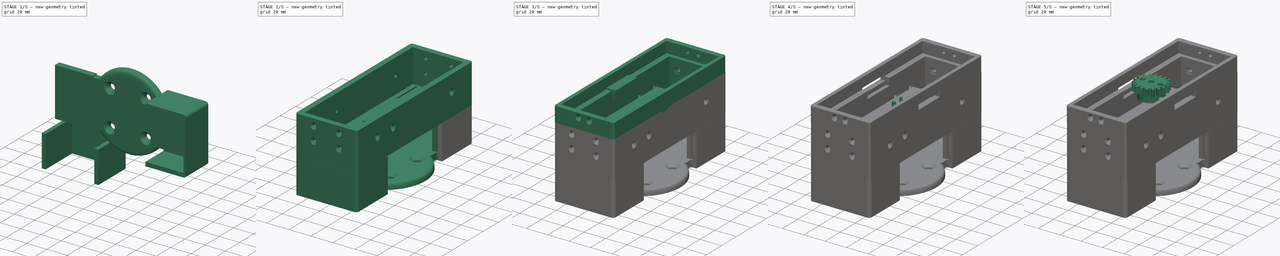
[diagram: build sequence overview — one tinted view per stage of 5, left to right]
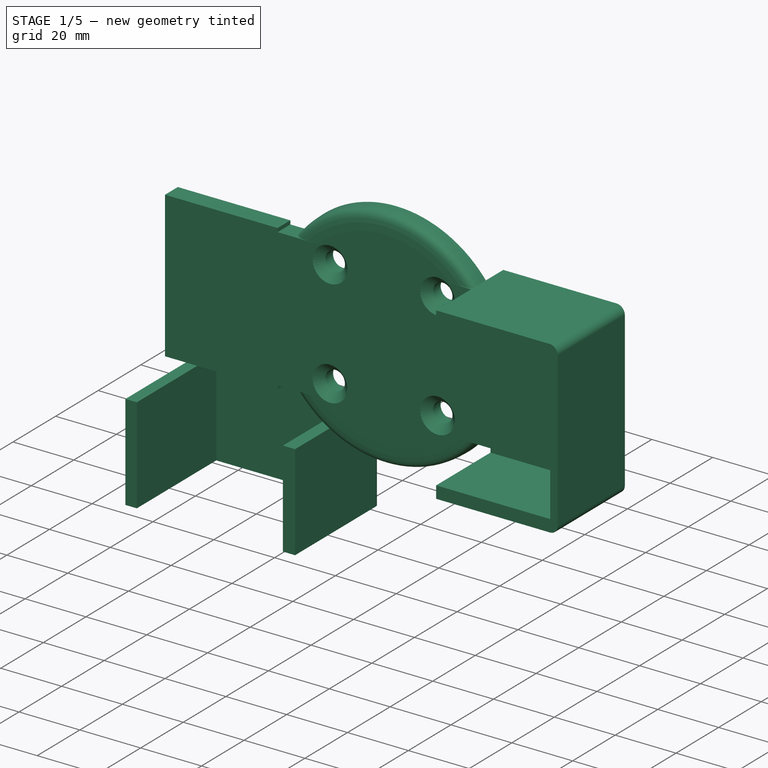
[diagram: stage 1 of 5 — iso view after this stage's code; geometry added in this stage tinted green]
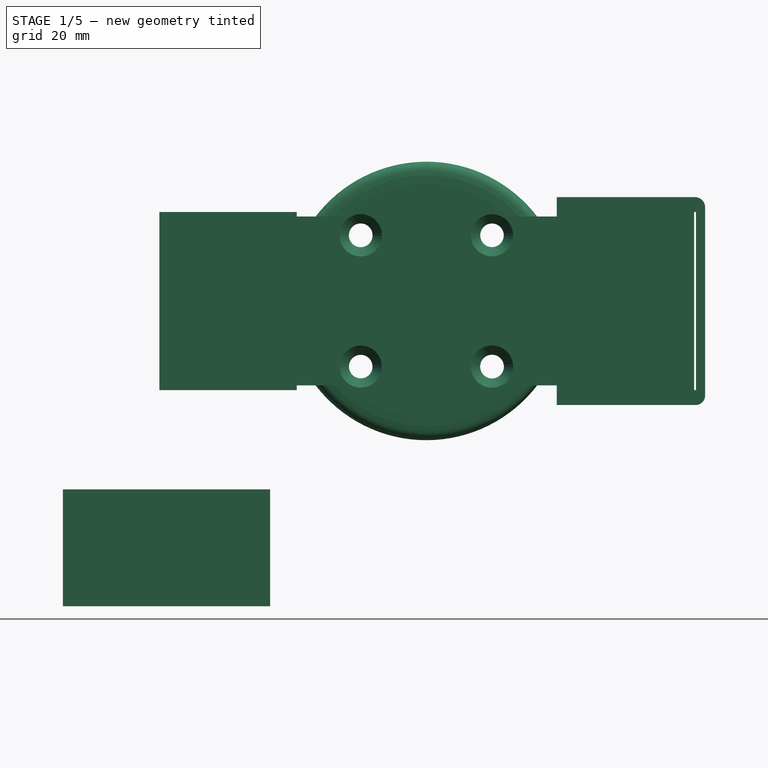
[diagram: stage 1 of 5 — front view after this stage's code; geometry added in this stage tinted green]
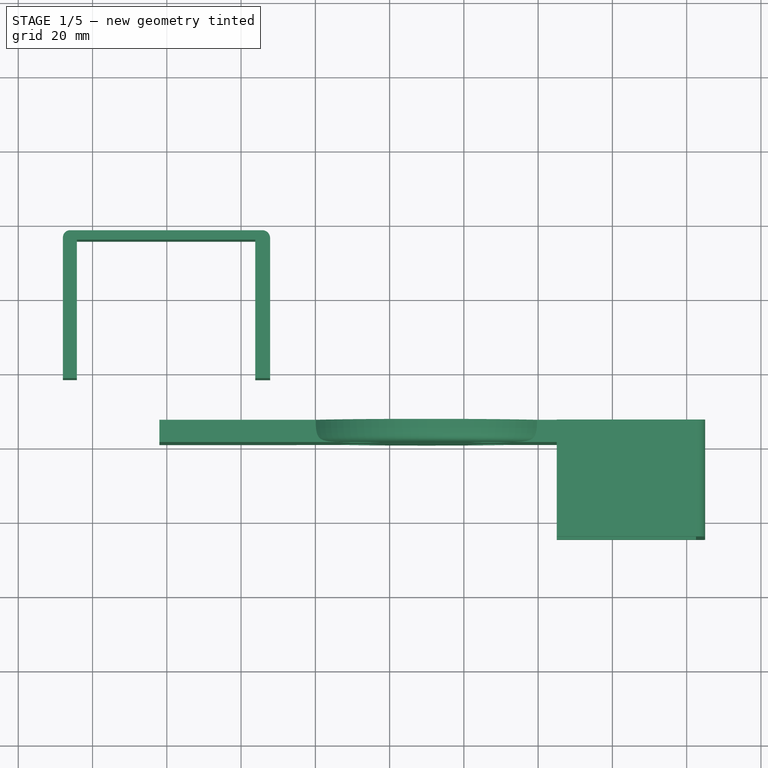
[diagram: stage 1 of 5 — top view after this stage's code; geometry added in this stage tinted green]
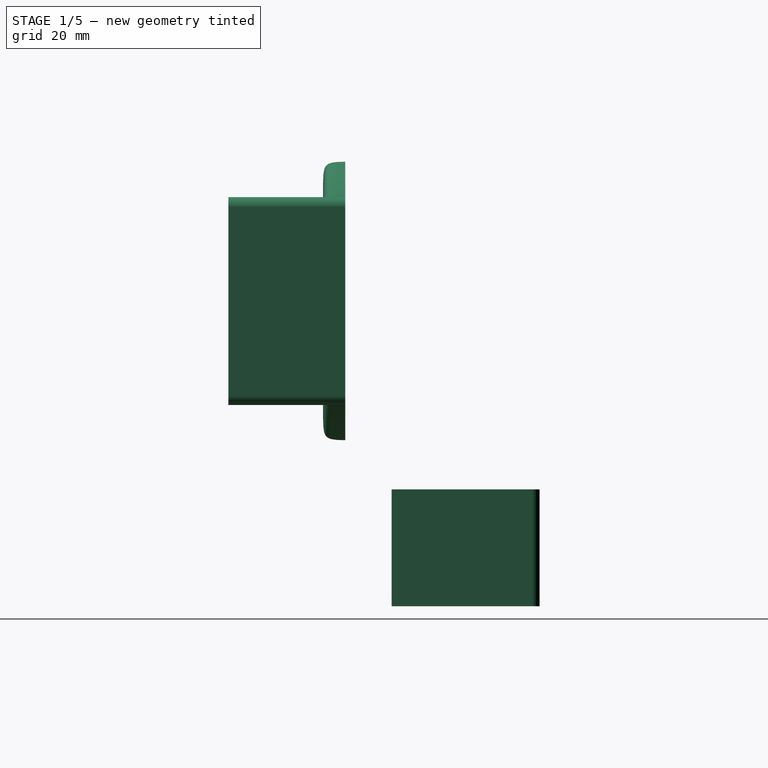
[diagram: stage 1 of 5 — right view after this stage's code; geometry added in this stage tinted green]
FCSTD DOCUMENT  (FreeCAD 0.19R24276 (Git))
Label: my_gripper
License: All rights reserved
LicenseURL: http://en.wikipedia.org/wiki/All_rights_reserved
objects: Part::Feature×81, App::Part×39, Sketcher::SketchObject×33, PartDesign::Body×27, PartDesign::Pad×26, Part::Cut×17, PartDesign::ShapeBinder×15, Part::MultiFuse×6, Part::FeaturePython×1, PartDesign::FeatureBase×1
note: 233 computed .brp shape members not serialized (recipe doc carries the construction recipe); baked Part::Feature solids carry a one-line shape summary decoded from their .brp

FEATURE [Part::Feature] Robot_connector_v2001_solid  label="Robot_connector_v2001 (Solid)"
  shape: bbox 139.8 x 26 x 75 mm, 6956 faces (baked)
FEATURE [App::Part] Part022
  Group = -> [Robot_connector_v2001_solid]
  Origin = -> Origin059
FEATURE [PartDesign::ShapeBinder] CopyRobot_connector_v2001_solid001
  TraceSupport = false
FEATURE [Sketcher::SketchObject] Sketch029
  FullyConstrained = false
  MapMode = 5
  Placement = pos=(0,0,0) rot=(1,0,0;1.5708rad)
  Support = -> [CopyRobot_connector_v2001_solid001]
  sketch-geometry (8):
    g0: LineSegment StartX=-1 StartY=61 StartZ=0 EndX=35 EndY=61 EndZ=0
    g1: LineSegment StartX=35 StartY=61 StartZ=0 EndX=35 EndY=55 EndZ=0
    g2: LineSegment StartX=-1 StartY=14 StartZ=0 EndX=-1 EndY=61 EndZ=0
    g3: LineSegment StartX=-1 StartY=14 StartZ=0 EndX=36 EndY=14 EndZ=0
    g4: LineSegment StartX=36 StartY=14 StartZ=0 EndX=36 EndY=20 EndZ=0
    g5: LineSegment StartX=36 StartY=20 StartZ=0 EndX=6 EndY=20 EndZ=0
    g6: LineSegment StartX=6 StartY=20 StartZ=0 EndX=6 EndY=55 EndZ=0
    g7: LineSegment StartX=6 StartY=55 StartZ=0 EndX=35 EndY=55 EndZ=0
  constraints (16):
    c: Coincident(g0,g1)
    c: Coincident(g2,g0)
    c: Horizontal(g0)
    c: Vertical(g1)
    c: Vertical(g2)
    c: Coincident(g2,g3)
    c: Horizontal(g3)
    c: Coincident(g3,g4)
    c: Vertical(g4)
    c: Coincident(g4,g5)
    c: Horizontal(g5)
    c: Coincident(g5,g6)
    c: Vertical(g6)
    c: Coincident(g6,g7)
    c: Coincident(g7,g1)
    c: Horizontal(g7)
FEATURE [PartDesign::Pad] Pad023
  Direction = (1,1,1)
  Length = 20
  Length2 = 100
  Profile = -> Sketch029
  Reversed = true
  Type = 0
FEATURE [PartDesign::ShapeBinder] CopyCut
  TraceSupport = false
FEATURE [Sketcher::SketchObject] Sketch030
  FullyConstrained = true
  MapMode = 5
  Placement = pos=(0,0,0) rot=(1,0,0;1.5708rad)
  Support = -> [CopyCut]
FEATURE [PartDesign::Body] Body023
  Group = -> [CopyRobot_connector_v2001_solid001,Sketch029,Pad023,CopyCut,Sketch030]
  Origin = -> Origin061
  Tip = -> Pad023
FEATURE [App::Part] Part023
  Group = -> [Body023]
  Origin = -> Origin060
FEATURE [Part::Cut] Cut015
  Base = -> Part022
  Tool = -> Part023
FEATURE [PartDesign::ShapeBinder] CopyCut001
  TraceSupport = false
FEATURE [Sketcher::SketchObject] Sketch031
  FullyConstrained = false
  MapMode = 5
  Placement = pos=(0,0,0) rot=(1,0,0;1.5708rad)
  Support = -> [CopyCut001]
  sketch-geometry (9):
    g0: LineSegment StartX=104 StartY=61 StartZ=0 EndX=104 EndY=55 EndZ=0
    g1: LineSegment StartX=104 StartY=55 StartZ=0 EndX=134 EndY=55 EndZ=0
    g2: LineSegment StartX=134 StartY=55 StartZ=0 EndX=134 EndY=21 EndZ=0
    g3: LineSegment StartX=134 StartY=21 StartZ=0 EndX=134 EndY=20 EndZ=0
    g4: LineSegment StartX=134 StartY=20 StartZ=0 EndX=104 EndY=20 EndZ=0
    g5: LineSegment StartX=104 StartY=20 StartZ=0 EndX=104 EndY=14 EndZ=0
    g6: LineSegment StartX=104 StartY=14 StartZ=0 EndX=140 EndY=14 EndZ=0
    g7: LineSegment StartX=140 StartY=14 StartZ=0 EndX=140 EndY=61 EndZ=0
    g8: LineSegment StartX=140 StartY=61 StartZ=0 EndX=104 EndY=61 EndZ=0
  constraints (18):
    c: Vertical(g0)
    c: Coincident(g0,g1)
    c: Horizontal(g1)
    c: Coincident(g1,g2)
    c: Vertical(g2)
    c: Coincident(g2,g3)
    c: Vertical(g3)
    c: Coincident(g3,g4)
    c: Horizontal(g4)
    c: Coincident(g4,g5)
    c: Vertical(g5)
    c: Coincident(g5,g6)
    c: Horizontal(g6)
    c: Coincident(g6,g7)
    c: Vertical(g7)
    c: Coincident(g7,g8)
    c: Coincident(g8,g0)
    c: Horizontal(g8)
FEATURE [PartDesign::Pad] Pad024
  Direction = (1,1,1)
  Length = 20
  Length2 = 100
  Profile = -> Sketch031
  Reversed = true
  Type = 0
FEATURE [PartDesign::Body] Body024
  Group = -> [CopyCut001,Sketch031,Pad024]
  Origin = -> Origin063
  Tip = -> Pad024
FEATURE [App::Part] Part024
  Group = -> [Body024]
  Origin = -> Origin062
FEATURE [Part::Cut] Cut016
  Base = -> Cut015
  Tool = -> Part024
FEATURE [PartDesign::ShapeBinder] CopyCut001001
  TraceSupport = false
FEATURE [Sketcher::SketchObject] Sketch032
  FullyConstrained = false
  MapMode = 5
  Placement = pos=(0,26,0) rot=(0,0.707107,0.707107;3.14159rad)
  Support = -> [CopyCut001001]
  sketch-geometry (8):
    g0: LineSegment StartX=-105 StartY=61.5 StartZ=0 EndX=-142 EndY=61.5 EndZ=0
    g1: LineSegment StartX=-142 StartY=61.5 StartZ=0 EndX=-142 EndY=13.4934 EndZ=0
    g2: LineSegment StartX=-142 StartY=13.4934 StartZ=0 EndX=-105 EndY=13.4934 EndZ=0
    g3: LineSegment StartX=-105 StartY=13.4934 StartZ=0 EndX=-105 EndY=14.9934 EndZ=0
    g4: LineSegment StartX=-105 StartY=14.9934 StartZ=0 EndX=-139.5 EndY=14.9934 EndZ=0
    g5: LineSegment StartX=-139.5 StartY=14.9934 StartZ=0 EndX=-139.5 EndY=60 EndZ=0
    g6: LineSegment StartX=-139.5 StartY=60 StartZ=0 EndX=-105 EndY=60 EndZ=0
    g7: LineSegment StartX=-105 StartY=60 StartZ=0 EndX=-105 EndY=61.5 EndZ=0
  constraints (14):
    c: Horizontal(g0)
    c: Coincident(g0,g1)
    c: Vertical(g1)
    c: Coincident(g1,g2)
    c: Horizontal(g2)
    c: Coincident(g2,g3)
    c: Coincident(g3,g4)
    c: Horizontal(g4)
    c: Coincident(g4,g5)
    c: Vertical(g5)
    c: Coincident(g5,g6)
    c: Horizontal(g6)
    c: Coincident(g6,g7)
    c: Coincident(g7,g0)
FEATURE [PartDesign::Pad] Pad025
  Direction = (1,1,1)
  Length = 6
  Length2 = 100
  Profile = -> Sketch032
  Reversed = true
  Type = 0
FEATURE [PartDesign::Body] Body025  label="adaos_dreapta_0"
  Group = -> [CopyCut001001,Sketch032,Pad025]
  Origin = -> Origin065
  Tip = -> Pad025
FEATURE [App::Part] Part025  label="adaos_dreapta"
  Group = -> [Body025]
  Origin = -> Origin064
FEATURE [Part::MultiFuse] Fusion002
  Shapes = -> [Cut016,Part025]
FEATURE [Sketcher::SketchObject] Sketch033
  FullyConstrained = false
  MapMode = 5
  Placement = pos=(0,26,0) rot=(0,0.707107,0.707107;3.14159rad)
  sketch-geometry (8):
    g0: LineSegment StartX=-35 StartY=61.5 StartZ=0 EndX=2 EndY=61.5 EndZ=0
    g1: LineSegment StartX=2 StartY=61.5 StartZ=0 EndX=2 EndY=13.5 EndZ=0
    g2: LineSegment StartX=2 StartY=13.5 StartZ=0 EndX=-35 EndY=13.5 EndZ=0
    g3: LineSegment StartX=-35 StartY=13.5 StartZ=0 EndX=-35 EndY=15 EndZ=0
    g4: LineSegment StartX=-35 StartY=15 StartZ=0 EndX=-0.998207 EndY=15 EndZ=0
    g5: LineSegment StartX=-0.998207 StartY=15 StartZ=0 EndX=-0.998207 EndY=60 EndZ=0
    g6: LineSegment StartX=-0.998207 StartY=60 StartZ=0 EndX=-35 EndY=60 EndZ=0
    g7: LineSegment StartX=-35 StartY=60 StartZ=0 EndX=-35 EndY=61.5 EndZ=0
  constraints (13):
    c: Horizontal(g0)
    c: Coincident(g0,g1)
    c: Vertical(g1)
    c: Coincident(g1,g2)
    c: Horizontal(g2)
    c: Coincident(g2,g3)
    c: Coincident(g3,g4)
    c: Horizontal(g4)
    c: Coincident(g4,g5)
    c: Vertical(g5)
    c: Coincident(g5,g6)
    c: Horizontal(g6)
    c: Coincident(g6,g7)
FEATURE [PartDesign::Pad] Pad026
  Direction = (1,1,1)
  Length = 6
  Length2 = 100
  Placement = pos=(0,26,0) rot=(0,0.707107,0.707107;3.14159rad)
  Profile = -> Sketch033
  Reversed = true
  Type = 0
FEATURE [PartDesign::Body] Body026
  Group = -> [Sketch033,Pad026]
  Origin = -> Origin067
  Tip = -> Pad026
FEATURE [App::Part] Part026  label="adaos_stanga"
  Group = -> [Body026]
  Origin = -> Origin066
FEATURE [Part::MultiFuse] Fusion003
  Shapes = -> [Fusion002,Part026]
FEATURE [PartDesign::ShapeBinder] CopyPad002
  TraceSupport = false
FEATURE [Sketcher::SketchObject] Sketch034
  FullyConstrained = false
  MapMode = 5
  Placement = pos=(0,26,-6e-15) rot=(0,0.707107,0.707107;3.14159rad)
  Support = -> [CopyPad002]
  sketch-geometry (10):
    g0: LineSegment StartX=-142.242 StartY=65.4956 StartZ=0 EndX=-105 EndY=65.4956 EndZ=0
    g1: LineSegment StartX=-144.959 StartY=62.7784 StartZ=0 EndX=-144.959 EndY=12.0418 EndZ=0
    g2: LineSegment StartX=-142.417 StartY=9.5 StartZ=0 EndX=-105 EndY=9.5 EndZ=0
    g3: LineSegment StartX=-105 StartY=13.5 StartZ=0 EndX=-142.5 EndY=13.5 EndZ=0
    g4: LineSegment StartX=-142.5 StartY=13.5 StartZ=0 EndX=-142.5 EndY=61.4956 EndZ=0
    g5: LineSegment StartX=-142.5 StartY=61.4956 StartZ=0 EndX=-105 EndY=61.4956 EndZ=0
    g6: LineSegment StartX=-105 StartY=61.4956 StartZ=0 EndX=-105 EndY=65.4956 EndZ=0
    g7: ArcOfCircle CenterX=-142.242 CenterY=62.7784 CenterZ=0 NormalX=0 NormalY=0 NormalZ=1 AngleXU=0 Radius=2.71718 StartAngle=1.5708 EndAngle=3.14159
    g8: ArcOfCircle CenterX=-142.417 CenterY=12.0418 CenterZ=0 NormalX=0 NormalY=0 NormalZ=1 AngleXU=0 Radius=2.54181 StartAngle=3.14159 EndAngle=4.71239
    g9: LineSegment StartX=-105 StartY=13.5 StartZ=0 EndX=-105 EndY=9.5 EndZ=0
  constraints (19):
    c: Horizontal(g0)
    c: Vertical(g1)
    c: Horizontal(g2)
    c: Horizontal(g3)
    c: Coincident(g3,g4)
    c: Vertical(g4)
    c: Coincident(g4,g5)
    c: Horizontal(g5)
    c: Coincident(g5,g6)
    c: Coincident(g6,g0)
    c: Vertical(g6)
    c: Tangent(g0,g7) = 1.5708
    c: Tangent(g1,g7) = -1.5708
    c: Tangent(g1,g8) = -1.5708
    c: Tangent(g2,g8) = -1.5708
    c: Coincident(g3,g9)
    c: Coincident(g9,g2)
    c: Distance(g9) = 4
    c: Distance(g6) = 4
FEATURE [PartDesign::Pad] Pad027
  Direction = (1,1,1)
  Length = 31.5
  Length2 = 100
  Profile = -> Sketch034
  Reversed = true
  Type = 0
FEATURE [PartDesign::ShapeBinder] CopyFusion004
  Placement = pos=(-37.7,73.3,-24.7) rot=(-0.57735,0.57735,-0.57735;2.0944rad)
  TraceSupport = false
FEATURE [Sketcher::SketchObject] Sketch035
  FullyConstrained = false
  MapMode = 5
  Placement = pos=(-37.7,73.3,-44.7) rot=(0,0,-1;1.5708rad)
  Support = -> [CopyFusion004]
  sketch-geometry (12):
    g0: LineSegment StartX=34.815 StartY=61.5177 StartZ=0 EndX=34.815 EndY=65.5177 EndZ=0
    g1: LineSegment StartX=34.815 StartY=65.5177 StartZ=0 EndX=-2.185 EndY=65.5177 EndZ=0
    g2: LineSegment StartX=-2.185 StartY=65.5177 StartZ=0 EndX=-2.93124 EndY=65.5177 EndZ=0
    g3: LineSegment StartX=34.815 StartY=61.5177 StartZ=0 EndX=-2.5 EndY=61.5177 EndZ=0
    g4: LineSegment StartX=-2.5 StartY=61.5177 StartZ=0 EndX=-2.5 EndY=13.4712 EndZ=0
    g5: LineSegment StartX=-2.5 StartY=13.4712 StartZ=0 EndX=34.7892 EndY=13.4712 EndZ=0
    g6: LineSegment StartX=34.7892 StartY=13.4712 StartZ=0 EndX=34.7892 EndY=9.71948 EndZ=0
    g7: LineSegment StartX=34.7892 StartY=9.71948 StartZ=0 EndX=-2.21083 EndY=9.71948 EndZ=0
    g8: LineSegment StartX=-2.21083 StartY=9.71948 StartZ=0 EndX=-3.09512 EndY=9.71948 EndZ=0
    g9: LineSegment StartX=-5.04798 StartY=11.6723 StartZ=0 EndX=-5.04798 EndY=63.4009 EndZ=0
    g10: ArcOfCircle CenterX=-2.93124 CenterY=63.4009 CenterZ=0 NormalX=0 NormalY=0 NormalZ=1 AngleXU=0 Radius=2.11674 StartAngle=1.5708 EndAngle=3.14159
    g11: ArcOfCircle CenterX=-3.09512 CenterY=11.6723 CenterZ=0 NormalX=0 NormalY=0 NormalZ=1 AngleXU=0 Radius=1.95286 StartAngle=3.14159 EndAngle=4.71239
  constraints (23):
    c: Vertical(g0)
    c: Coincident(g0,g1)
    c: Horizontal(g1)
    c: Coincident(g1,g2)
    c: Horizontal(g2)
    c: Coincident(g0,g3)
    c: Horizontal(g3)
    c: Coincident(g3,g4)
    c: Vertical(g4)
    c: Coincident(g4,g5)
    c: Horizontal(g5)
    c: Coincident(g5,g6)
    c: Vertical(g6)
    c: Coincident(g6,g7)
    c: Horizontal(g7)
    c: Coincident(g7,g8)
    c: Horizontal(g8)
    c: Vertical(g9)
    c: Tangent(g2,g10) = -1.5708
    c: Tangent(g9,g10) = 1.5708
    c: Distance(g0) = 4
    c: Tangent(g9,g11) = 1.5708
    c: Tangent(g8,g11) = 1.5708
FEATURE [PartDesign::Pad] Pad028
  Direction = (1,1,1)
  Length = 31.5
  Length2 = 100
  Placement = pos=(-37.7,73.3,-24.7) rot=(-0.57735,0.57735,-0.57735;2.0944rad)
  Profile = -> Sketch035
  Type = 0
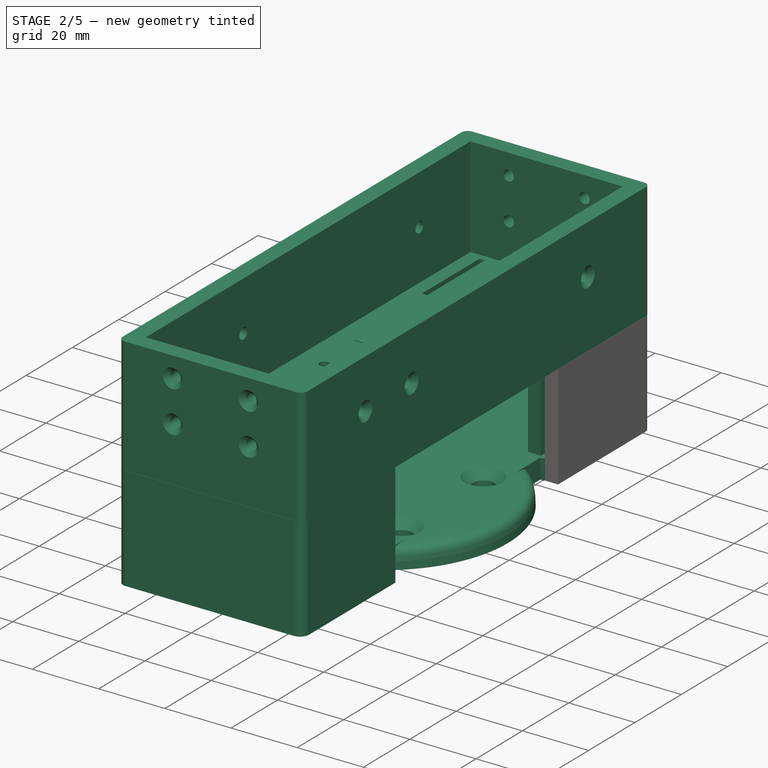
[diagram: stage 2 of 5 — iso view after this stage's code; geometry added in this stage tinted green]
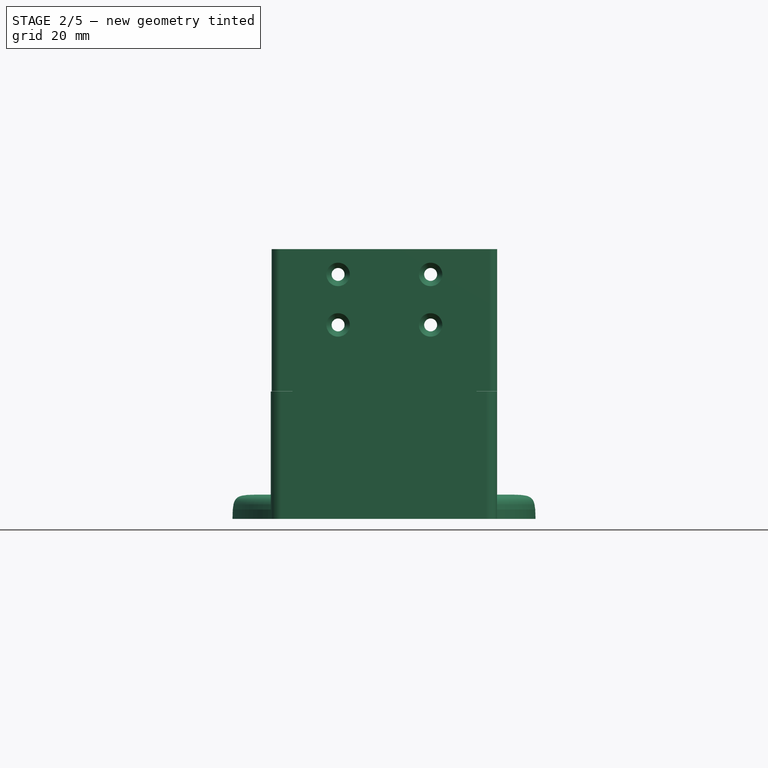
[diagram: stage 2 of 5 — front view after this stage's code; geometry added in this stage tinted green]
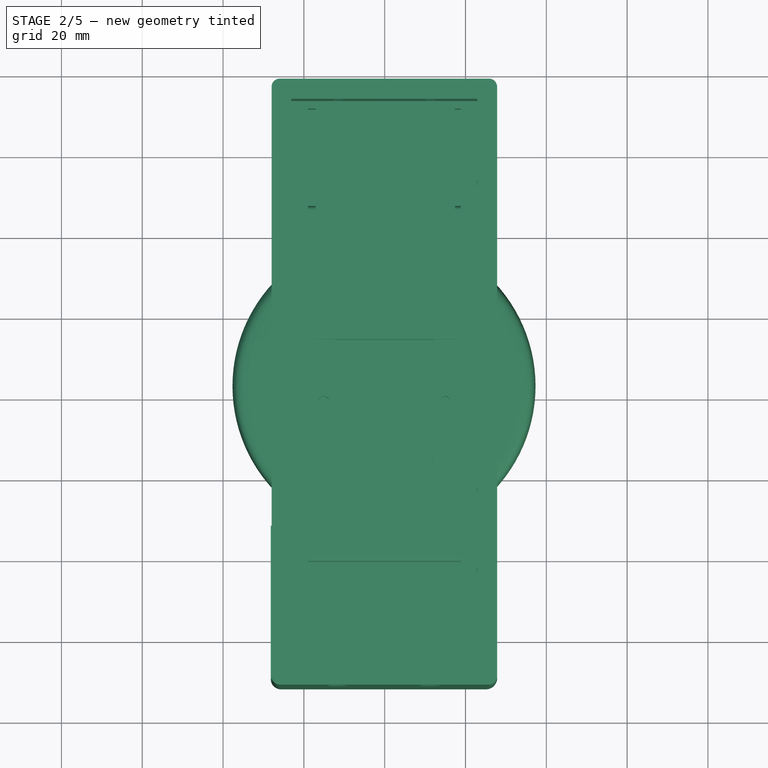
[diagram: stage 2 of 5 — top view after this stage's code; geometry added in this stage tinted green]
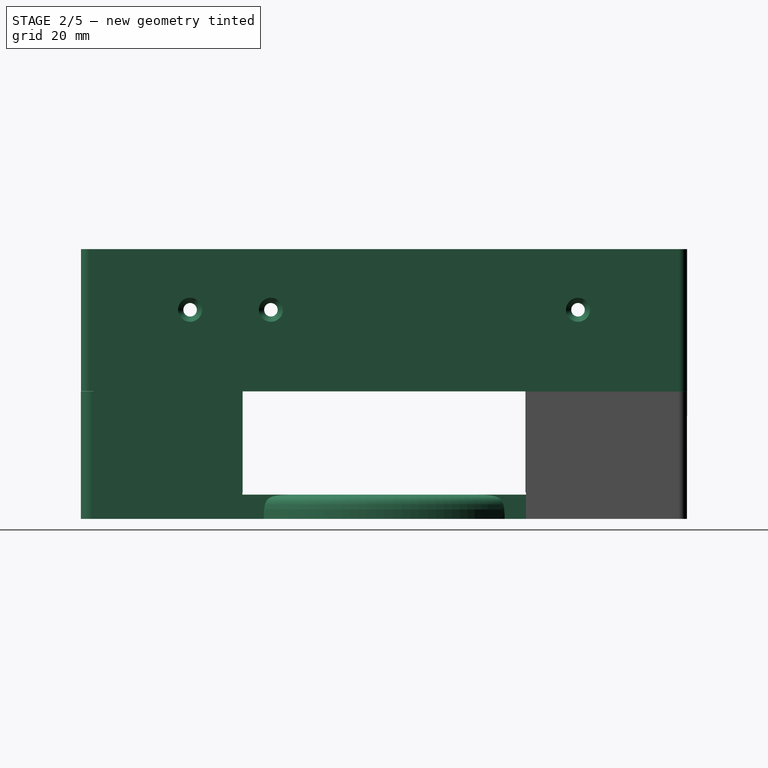
[diagram: stage 2 of 5 — right view after this stage's code; geometry added in this stage tinted green]
FEATURE [Part::Feature] Part__Feature010  label="GB - Rack-spur - rectangular 1.5M 20PA 6.5FW 4.5PH 56.5L---SAll001"
  shape: bbox 102 x 5.9 x 6.5 mm, 94 faces (baked)
FEATURE [App::Part] _e51114460145520dc4032a1bbcb96c420230129_1_2bg1k7001  label="rack_down"
  Group = -> [Part__Feature010]
  Origin = -> Origin036
  Placement = pos=(18.5,-47.25,29) rot=(0,0,1;1.5708rad)
FEATURE [Part::Feature] Part__Feature011  label="默认005"
  shape: bbox 102 x 25.85 x 10.4 mm, 51 faces (baked)
FEATURE [App::Part] _9dcb4f0f04c1159ae32c3b91fff780c20230129_1_z3p38f001  label="slider_down"
  Group = -> [Part__Feature011]
  Origin = -> Origin037
  Placement = pos=(14.4,37.1,39.2) rot=(0.57735,-0.57735,0.57735;4.18879rad)
FEATURE [App::Part] Part014
  Group = -> [_a646f5a092c4f7b2ff40f60c0eee81720230129_1_buqnvq]
  Origin = -> Origin038
FEATURE [PartDesign::ShapeBinder] CopyPart__Feature005
  TraceSupport = false
FEATURE [Sketcher::SketchObject] Sketch018
  FullyConstrained = false
  MapMode = 5
  Placement = pos=(0,5,0) rot=(0,0.707107,0.707107;3.14159rad)
  Support = -> [CopyPart__Feature005]
  sketch-geometry (4):
    g0: LineSegment StartX=-11 StartY=-12 StartZ=0 EndX=-34 EndY=-12 EndZ=0
    g1: LineSegment StartX=-34 StartY=-12 StartZ=0 EndX=-34 EndY=12 EndZ=0
    g2: LineSegment StartX=-34 StartY=12 StartZ=0 EndX=-11 EndY=12 EndZ=0
    g3: LineSegment StartX=-11 StartY=12 StartZ=0 EndX=-11 EndY=-12 EndZ=0
  constraints (8):
    c: Coincident(g0,g1)
    c: Coincident(g1,g2)
    c: Coincident(g2,g3)
    c: Coincident(g3,g0)
    c: Horizontal(g0)
    c: Horizontal(g2)
    c: Vertical(g1)
    c: Vertical(g3)
FEATURE [PartDesign::Pad] Pad014
  Direction = (1,1,1)
  Length = 9
  Length2 = 100
  Profile = -> Sketch018
  Reversed = true
  Type = 0
FEATURE [PartDesign::Body] Body014
  Group = -> [CopyPart__Feature005,Sketch018,Pad014]
  Origin = -> Origin040
  Placement = pos=(0,15,0) rot=(0,0,1;0rad)
  Tip = -> Pad014
FEATURE [App::Part] Part015  label="decupeaza_servo"
  Group = -> [Body014]
  Origin = -> Origin039
  Placement = pos=(-1e-15,3,8e-16) rot=(-0.57735,0.57735,-0.57735;2.0944rad)
FEATURE [Part::Cut] Cut010
  Base = -> Part014
  Tool = -> Part015
FEATURE [PartDesign::ShapeBinder] CopyCut010
  TraceSupport = false
FEATURE [Sketcher::SketchObject] Sketch023
  FullyConstrained = false
  MapMode = 5
  Placement = pos=(-1.92e-14,0,-19.16) rot=(1,0,0;3.14159rad)
  Support = -> [CopyCut010]
  sketch-geometry (4):
    g0: LineSegment StartX=-17.106 StartY=-14.3221 StartZ=0 EndX=17.4009 EndY=-14.3221 EndZ=0
    g1: LineSegment StartX=17.4009 StartY=-14.3221 StartZ=0 EndX=17.4009 EndY=-72.6248 EndZ=0
    g2: LineSegment StartX=17.4009 StartY=-72.6248 StartZ=0 EndX=-17.106 EndY=-72.6248 EndZ=0
    g3: LineSegment StartX=-17.106 StartY=-72.6248 StartZ=0 EndX=-17.106 EndY=-14.3221 EndZ=0
  constraints (8):
    c: Coincident(g0,g1)
    c: Coincident(g1,g2)
    c: Coincident(g2,g3)
    c: Coincident(g3,g0)
    c: Horizontal(g0)
    c: Horizontal(g2)
    c: Vertical(g1)
    c: Vertical(g3)
FEATURE [PartDesign::Pad] Pad018
  Direction = (1,1,1)
  Length = 5.2
  Length2 = 100
  Profile = -> Sketch023
  Reversed = true
  Type = 0
FEATURE [PartDesign::ShapeBinder] CopyFusion001
  TraceSupport = false
FEATURE [Sketcher::SketchObject] Sketch024
  FullyConstrained = false
  MapMode = 5
  Placement = pos=(-1.92e-14,0,-19.16) rot=(1,0,0;3.14159rad)
  Support = -> [CopyFusion001]
  sketch-geometry (4):
    g0: LineSegment StartX=-14.5006 StartY=-20.7249 StartZ=0 EndX=14.4994 EndY=-20.7249 EndZ=0
    g1: LineSegment StartX=14.4994 StartY=-20.7249 StartZ=0 EndX=14.4994 EndY=-69.7249 EndZ=0
    g2: LineSegment StartX=14.4994 StartY=-69.7249 StartZ=0 EndX=-14.5006 EndY=-69.7249 EndZ=0
    g3: LineSegment StartX=-14.5006 StartY=-69.7249 StartZ=0 EndX=-14.5006 EndY=-20.7249 EndZ=0
  constraints (10):
    c: Coincident(g0,g1)
    c: Coincident(g1,g2)
    c: Coincident(g2,g3)
    c: Coincident(g3,g0)
    c: Horizontal(g0)
    c: Horizontal(g2)
    c: Vertical(g1)
    c: Vertical(g3)
    c: Distance(g3) = 49
    c: Distance(g0) = 29
FEATURE [PartDesign::Pad] Pad019
  Direction = (1,1,1)
  Length = 3.2
  Length2 = 100
  Profile = -> Sketch024
  Reversed = true
  Type = 0
FEATURE [PartDesign::ShapeBinder] CopyCut011
  Placement = pos=(2e-15,1.2e-15,3.2) rot=(0,0,1;0rad)
  TraceSupport = false
FEATURE [Sketcher::SketchObject] Sketch025
  FullyConstrained = false
  MapMode = 5
  Placement = pos=(-9.7e-15,-5.7e-15,-15.96) rot=(1,0,0;3.14159rad)
  Support = -> [CopyCut011]
  sketch-geometry (4):
    g0: LineSegment StartX=-14.2192 StartY=-20.5205 StartZ=0 EndX=-11.2192 EndY=-20.5205 EndZ=0
    g1: LineSegment StartX=-11.2192 StartY=-20.5205 StartZ=0 EndX=-11.2192 EndY=-69.6 EndZ=0
    g2: LineSegment StartX=-11.2192 StartY=-69.6 StartZ=0 EndX=-14.2192 EndY=-69.6 EndZ=0
    g3: LineSegment StartX=-14.2192 StartY=-69.6 StartZ=0 EndX=-14.2192 EndY=-20.5205 EndZ=0
  constraints (9):
    c: Coincident(g0,g1)
    c: Coincident(g1,g2)
    c: Coincident(g2,g3)
    c: Coincident(g3,g0)
    c: Horizontal(g0)
    c: Horizontal(g2)
    c: Vertical(g1)
    c: Vertical(g3)
    c: Distance(g2) = 3
FEATURE [PartDesign::Pad] Pad020
  Direction = (1,1,1)
  Length = 2
  Length2 = 100
  Placement = pos=(2e-15,1.2e-15,3.2) rot=(0,0,1;0rad)
  Profile = -> Sketch025
  Reversed = true
  Type = 0
FEATURE [PartDesign::ShapeBinder] CopyCut012
  TraceSupport = false
FEATURE [Sketcher::SketchObject] Sketch026
  FullyConstrained = false
  MapMode = 5
  Placement = pos=(-9.7e-15,-5.7e-15,-15.96) rot=(1,0,0;3.14159rad)
  Support = -> [CopyCut012]
  sketch-geometry (4):
    g0: LineSegment StartX=11.7972 StartY=-20.5888 StartZ=0 EndX=14.7972 EndY=-20.5888 EndZ=0
    g1: LineSegment StartX=14.7972 StartY=-20.5888 StartZ=0 EndX=14.7972 EndY=-69.6516 EndZ=0
    g2: LineSegment StartX=14.7972 StartY=-69.6516 StartZ=0 EndX=11.7972 EndY=-69.6516 EndZ=0
    g3: LineSegment StartX=11.7972 StartY=-69.6516 StartZ=0 EndX=11.7972 EndY=-20.5888 EndZ=0
  constraints (9):
    c: Coincident(g0,g1)
    c: Coincident(g1,g2)
    c: Coincident(g2,g3)
    c: Coincident(g3,g0)
    c: Horizontal(g0)
    c: Horizontal(g2)
    c: Vertical(g1)
    c: Vertical(g3)
    c: Distance(g2) = 3
FEATURE [PartDesign::Pad] Pad021
  Direction = (1,1,1)
  Length = 2
  Length2 = 100
  Profile = -> Sketch026
  Reversed = true
  Type = 0
FEATURE [Part::Feature] Part__Feature012  label="Default"
  shape: bbox 55.8 x 95.83 x 30.66 mm, 174 faces (baked)
FEATURE [App::Part] _c707f5aafa35e861b67baee97ed720120230129_1_2us5iz  label="finger_left"
  Group = -> [Part__Feature012]
  Origin = -> Origin054
  Placement = pos=(-0.4,60.6,48.3) rot=(1,0,0;1.5708rad)
FEATURE [Part::Feature] Part__Feature013  label="Default001"
  shape: bbox 55.8 x 95.83 x 30.66 mm, 174 faces (baked)
FEATURE [App::Part] _c707f5aafa35e861b67baee97ed720120230129_1_2us5iz001  label="finger_right"
  Group = -> [Part__Feature013]
  Origin = -> Origin055
  Placement = pos=(-4.6e-15,-51.3,48.1) rot=(0,-0.707107,-0.707107;3.14159rad)
FEATURE [Part::Feature] Part__Feature014  label="ESP32S HW-573 PCB"
  shape: bbox 25.91 x 1.64 x 48.51 mm, 2018 faces (baked)
FEATURE [Part::Feature] Part__Feature015  label="ESP-WROOM-32"
  Placement = pos=(3e-15,1.565,-11.507) rot=(0,0.707107,0.707107;3.14159rad)
  shape: bbox 18.07 x 3.035 x 25.54 mm, 933 faces (baked)
FEATURE [Part::Feature] Part__Feature016  label="Male Header 19P 100 Pitch"
  Placement = pos=(11.43,-0.5,-0.005) rot=(0.57735,-0.57735,0.57735;2.0944rad)
  shape: bbox 2.54 x 11.54 x 47.96 mm, 648 faces (baked)
FEATURE [Part::Feature] Part__Feature017  label="Male Header 19P 100 Pitch001"
  Placement = pos=(-11.43,-0.5,-0.005) rot=(0.57735,-0.57735,0.57735;2.0944rad)
  shape: bbox 2.54 x 11.54 x 47.96 mm, 648 faces (baked)
FEATURE [Part::Feature] Part__Feature018  label="micro_usb_47346-0001"
  Placement = pos=(-1e-15,2.825,22.277) rot=(0,0,1;0rad)
  shape: bbox 7.98 x 2.94 x 5.43 mm, 394 faces (baked)
FEATURE [Part::Feature] Part__Feature019  label="CircuitWorks-SOT-223"
  Placement = pos=(4.374,2.38,6.453) rot=(0,1,0;1.5708rad)
  shape: bbox 6.96 x 1.68 x 6.5 mm, 86 faces (baked)
FEATURE [Part::Feature] Part__Feature020  label="Pol Cap SMD 3528 H2mm"
  Placement = pos=(-1.53686,1.6,5.5499) rot=(0,1,0;3.14159rad)
  shape: bbox 3.073 x 2.134 x 3.734 mm, 42 faces (baked)
FEATURE [Part::Feature] Part__Feature021  label="0805 SMD Capacitor"
  Placement = pos=(-6.069,1.6,6.903) rot=(0,-1,0;1.5708rad)
  shape: bbox 1.25 x 0.782 x 2 mm, 90 faces (baked)
FEATURE [Part::Feature] Part__Feature022  label="0603 SMD Resistor"
  Placement = pos=(-4.444,1.6,6.383) rot=(0,-1,0;1.5708rad)
  shape: bbox 0.8 x 0.302 x 1.6 mm, 90 faces (baked)
FEATURE [Part::Feature] Part__Feature023  label="SOT-23"
  Placement = pos=(7.19337,2.15,12.053) rot=(0,0,1;0rad)
  shape: bbox 3 x 1.1 x 2.5 mm, 49 faces (baked)
FEATURE [Part::Feature] Part__Feature024  label="QFN28_5X5"
  Placement = pos=(0.202,1.6,14.385) rot=(-0.57735,-0.57735,-0.57735;2.0944rad)
  shape: bbox 5.008 x 0.9445 x 5.008 mm, 254 faces, 31 solids (baked)
FEATURE [Part::Feature] Part__Feature025  label="SOT-024"
  Placement = pos=(7.19337,2.15,15.8743) rot=(0,0,1;0rad)
  shape: bbox 3 x 1.1 x 2.5 mm, 49 faces (baked)
FEATURE [Part::Feature] Part__Feature026  label="Tact Switch SMD Tab 4mmx3mm"
  Placement = pos=(-7.25,1.65,21.257) rot=(0,-1,0;1.5708rad)
  shape: bbox 3.001 x 2.301 x 5.001 mm, 101 faces, 3 solids (baked)
FEATURE [Part::Feature] Part__Feature027  label="Tact Switch SMD Tab 4mmx3mm001"
  Placement = pos=(7.35,1.65,21.257) rot=(0,-1,0;1.5708rad)
  shape: bbox 3.001 x 2.301 x 5.001 mm, 101 faces, 3 solids (baked)
FEATURE [Part::Feature] Part__Feature028  label="0402 SMD Resistor___ _________"
  Placement = pos=(4.684,1.58,10.4458) rot=(0,0,1;0rad)
  shape: bbox 1.042 x 0.3419 x 0.6019 mm, 289 faces, 3 solids (baked)
FEATURE [Part::Feature] Part__Feature029  label="0402 SMD Resistor___ _________001"
  Placement = pos=(4.684,1.58,18.0958) rot=(0,0,1;0rad)
  shape: bbox 1.042 x 0.3419 x 0.6019 mm, 289 faces, 3 solids (baked)
FEATURE [Part::Feature] Part__Feature030  label="0402 SMD Resistor___ _________002"
  Placement = pos=(4.684,1.58,16.9958) rot=(0,0,1;0rad)
  shape: bbox 1.042 x 0.3419 x 0.6019 mm, 289 faces, 3 solids (baked)
FEATURE [Part::Feature] Part__Feature031  label="0402 SMD Resistor___ _________003"
  Placement = pos=(4.514,1.58,15.5758) rot=(0,-1,0;1.5708rad)
  shape: bbox 0.6019 x 0.3419 x 1.042 mm, 289 faces, 3 solids (baked)
FEATURE [Part::Feature] Part__Feature032  label="0402 SMD Resistor___ _________004"
  Placement = pos=(4.514,1.58,12.0958) rot=(0,-1,0;1.5708rad)
  shape: bbox 0.6019 x 0.3419 x 1.042 mm, 289 faces, 3 solids (baked)
FEATURE [Part::Feature] Part__Feature033  label="0402 SMD Resistor___ _________005"
  Placement = pos=(4.514,1.58,13.8358) rot=(0,-1,0;1.5708rad)
  shape: bbox 0.6019 x 0.3419 x 1.042 mm, 289 faces, 3 solids (baked)
FEATURE [Part::Feature] Part__Feature034  label="LED SMD0603"
  Placement = pos=(-4.68116,1.59523,10.2006) rot=(-1,0,0;1.5708rad)
  shape: bbox 0.725 x 0.675 x 1.65 mm, 50 faces, 5 solids (baked)
FEATURE [Part::Feature] Part__Feature035  label="LED SMD0604"
  Placement = pos=(-7.23616,1.59523,10.2006) rot=(-1,0,0;1.5708rad)
  shape: bbox 0.725 x 0.675 x 1.65 mm, 50 faces, 5 solids (baked)
FEATURE [Part::Feature] Part__Feature036  label="0402 SMD Resistor___ _________006"
  Placement = pos=(-6.279,1.58,11.573) rot=(0,-1,0;1.5708rad)
  shape: bbox 0.6019 x 0.3419 x 1.042 mm, 289 faces, 3 solids (baked)
FEATURE [Part::Feature] Part__Feature037  label="0402 SMD Capacitor"
  Placement = pos=(-2.454,1.6,10.4668) rot=(0,0,1;0rad)
  shape: bbox 1 x 0.202 x 0.6 mm, 84 faces (baked)
FEATURE [Part::Feature] Part__Feature038  label="0402 SMD Resistor___ _________007"
  Placement = pos=(-2.434,1.6,9.3668) rot=(0,0,1;0rad)
  shape: bbox 1.042 x 0.3419 x 0.6019 mm, 289 faces, 3 solids (baked)
FEATURE [Part::Feature] Part__Feature039  label="0603 SMD Capacitor"
  Placement = pos=(-5.12,1.6,14.117) rot=(0,-1,0;1.5708rad)
  shape: bbox 0.8 x 0.302 x 1.6 mm, 90 faces (baked)
FEATURE [Part::Feature] Part__Feature040  label="0402 SMD Resistor___ _________008"
  Placement = pos=(-4.37,1.58,16.077) rot=(0,0,1;0rad)
  shape: bbox 1.042 x 0.3419 x 0.6019 mm, 289 faces, 3 solids (baked)
FEATURE [Part::Feature] Part__Feature041  label="0402 SMD Capacitor001"
  Placement = pos=(-3.9,1.6,14.097) rot=(0,1,0;1.5708rad)
  shape: bbox 0.6 x 0.202 x 1 mm, 84 faces (baked)
FEATURE [Part::Feature] Part__Feature042  label="SOD323F-1"
  Placement = pos=(-7.029,1.6,14.543) rot=(0.57735,-0.57735,-0.57735;4.18879rad)
  shape: bbox 1.35 x 1 x 2.5 mm, 29 faces (baked)
FEATURE [Part::Feature] Part__Feature043  label="Pin Solder Joint"
  Placement = pos=(11.43,1.62,22.86) rot=(0,0,1;0rad)
  shape: bbox 1.5 x 1.1 x 3 mm, 4 faces (baked)
FEATURE [Part::Feature] Part__Feature044  label="Pin Solder Joint001"
  Placement = pos=(-11.43,1.62,22.86) rot=(0,0,1;0rad)
  shape: bbox 1.5 x 1.1 x 3 mm, 4 faces (baked)
FEATURE [Part::Feature] Part__Feature045  label="Pin Solder Joint002"
  Placement = pos=(11.43,1.62,20.32) rot=(0,0,1;0rad)
  shape: bbox 1.5 x 1.1 x 3 mm, 4 faces (baked)
FEATURE [Part::Feature] Part__Feature046  label="Pin Solder Joint003"
  Placement = pos=(-11.43,1.62,20.32) rot=(0,0,1;0rad)
  shape: bbox 1.5 x 1.1 x 3 mm, 4 faces (baked)
FEATURE [Part::Feature] Part__Feature047  label="Pin Solder Joint004"
  Placement = pos=(11.43,1.62,17.78) rot=(0,0,1;0rad)
  shape: bbox 1.5 x 1.1 x 3 mm, 4 faces (baked)
FEATURE [Part::Feature] Part__Feature048  label="Pin Solder Joint005"
  Placement = pos=(-11.43,1.62,17.78) rot=(0,0,1;0rad)
  shape: bbox 1.5 x 1.1 x 3 mm, 4 faces (baked)
FEATURE [Part::Feature] Part__Feature049  label="Pin Solder Joint006"
  Placement = pos=(11.43,1.62,15.24) rot=(0,0,1;0rad)
  shape: bbox 1.5 x 1.1 x 3 mm, 4 faces (baked)
FEATURE [Part::Feature] Part__Feature050  label="Pin Solder Joint007"
  Placement = pos=(-11.43,1.62,15.24) rot=(0,0,1;0rad)
  shape: bbox 1.5 x 1.1 x 3 mm, 4 faces (baked)
FEATURE [Part::Feature] Part__Feature051  label="Pin Solder Joint008"
  Placement = pos=(11.43,1.62,12.7) rot=(0,0,1;0rad)
  shape: bbox 1.5 x 1.1 x 3 mm, 4 faces (baked)
FEATURE [Part::Feature] Part__Feature052  label="Pin Solder Joint009"
  Placement = pos=(-11.43,1.62,12.7) rot=(0,0,1;0rad)
  shape: bbox 1.5 x 1.1 x 3 mm, 4 faces (baked)
FEATURE [Part::Feature] Part__Feature053  label="Pin Solder Joint010"
  Placement = pos=(11.43,1.62,10.16) rot=(0,0,1;0rad)
  shape: bbox 1.5 x 1.1 x 3 mm, 4 faces (baked)
FEATURE [Part::Feature] Part__Feature054  label="Pin Solder Joint011"
  Placement = pos=(-11.43,1.62,10.16) rot=(0,0,1;0rad)
  shape: bbox 1.5 x 1.1 x 3 mm, 4 faces (baked)
FEATURE [Part::Feature] Part__Feature055  label="Pin Solder Joint012"
  Placement = pos=(11.43,1.62,7.62) rot=(0,0,1;0rad)
  shape: bbox 1.5 x 1.1 x 3 mm, 4 faces (baked)
FEATURE [Part::Feature] Part__Feature056  label="Pin Solder Joint013"
  Placement = pos=(-11.43,1.62,7.62) rot=(0,0,1;0rad)
  shape: bbox 1.5 x 1.1 x 3 mm, 4 faces (baked)
FEATURE [Part::Feature] Part__Feature057  label="Pin Solder Joint014"
  Placement = pos=(11.43,1.62,5.08) rot=(0,0,1;0rad)
  shape: bbox 1.5 x 1.1 x 3 mm, 4 faces (baked)
FEATURE [Part::Feature] Part__Feature058  label="Pin Solder Joint015"
  Placement = pos=(-11.43,1.62,5.08) rot=(0,0,1;0rad)
  shape: bbox 1.5 x 1.1 x 3 mm, 4 faces (baked)
FEATURE [Part::Feature] Part__Feature059  label="Pin Solder Joint016"
  Placement = pos=(11.43,1.62,2.54) rot=(0,0,1;0rad)
  shape: bbox 1.5 x 1.1 x 3 mm, 4 faces (baked)
FEATURE [Part::Feature] Part__Feature060  label="Pin Solder Joint017"
  Placement = pos=(-11.43,1.62,2.54) rot=(0,0,1;0rad)
  shape: bbox 1.5 x 1.1 x 3 mm, 4 faces (baked)
FEATURE [Part::Feature] Part__Feature061  label="Pin Solder Joint018"
  Placement = pos=(11.43,1.62,-3e-15) rot=(0,0,1;0rad)
  shape: bbox 1.5 x 1.1 x 3 mm, 4 faces (baked)
FEATURE [Part::Feature] Part__Feature062  label="Pin Solder Joint019"
  Placement = pos=(-11.43,1.62,-3e-15) rot=(0,0,1;0rad)
  shape: bbox 1.5 x 1.1 x 3 mm, 4 faces (baked)
FEATURE [Part::Feature] Part__Feature063  label="Pin Solder Joint020"
  Placement = pos=(11.43,1.62,-2.54) rot=(0,0,1;0rad)
  shape: bbox 1.5 x 1.1 x 3 mm, 4 faces (baked)
FEATURE [Part::Feature] Part__Feature064  label="Pin Solder Joint021"
  Placement = pos=(-11.43,1.62,-2.54) rot=(0,0,1;0rad)
  shape: bbox 1.5 x 1.1 x 3 mm, 4 faces (baked)
FEATURE [Part::Feature] Part__Feature065  label="Pin Solder Joint022"
  Placement = pos=(11.43,1.62,-5.08) rot=(0,0,1;0rad)
  shape: bbox 1.5 x 1.1 x 3 mm, 4 faces (baked)
FEATURE [Part::Feature] Part__Feature066  label="Pin Solder Joint023"
  Placement = pos=(-11.43,1.62,-5.08) rot=(0,0,1;0rad)
  shape: bbox 1.5 x 1.1 x 3 mm, 4 faces (baked)
FEATURE [Part::Feature] Part__Feature067  label="Pin Solder Joint024"
  Placement = pos=(11.43,1.62,-7.62) rot=(0,0,1;0rad)
  shape: bbox 1.5 x 1.1 x 3 mm, 4 faces (baked)
FEATURE [Part::Feature] Part__Feature068  label="Pin Solder Joint025"
  Placement = pos=(-11.43,1.62,-7.62) rot=(0,0,1;0rad)
  shape: bbox 1.5 x 1.1 x 3 mm, 4 faces (baked)
FEATURE [Part::Feature] Part__Feature069  label="Pin Solder Joint026"
  Placement = pos=(11.43,1.62,-10.16) rot=(0,0,1;0rad)
  shape: bbox 1.5 x 1.1 x 3 mm, 4 faces (baked)
FEATURE [Part::Feature] Part__Feature070  label="Pin Solder Joint027"
  Placement = pos=(-11.43,1.62,-10.16) rot=(0,0,1;0rad)
  shape: bbox 1.5 x 1.1 x 3 mm, 4 faces (baked)
FEATURE [Part::Feature] Part__Feature071  label="Pin Solder Joint028"
  Placement = pos=(11.43,1.62,-12.7) rot=(0,0,1;0rad)
  shape: bbox 1.5 x 1.1 x 3 mm, 4 faces (baked)
FEATURE [Part::Feature] Part__Feature072  label="Pin Solder Joint029"
  Placement = pos=(-11.43,1.62,-12.7) rot=(0,0,1;0rad)
  shape: bbox 1.5 x 1.1 x 3 mm, 4 faces (baked)
FEATURE [Part::Feature] Part__Feature073  label="Pin Solder Joint030"
  Placement = pos=(11.43,1.62,-15.24) rot=(0,0,1;0rad)
  shape: bbox 1.5 x 1.1 x 3 mm, 4 faces (baked)
FEATURE [Part::Feature] Part__Feature074  label="Pin Solder Joint031"
  Placement = pos=(-11.43,1.62,-15.24) rot=(0,0,1;0rad)
  shape: bbox 1.5 x 1.1 x 3 mm, 4 faces (baked)
FEATURE [Part::Feature] Part__Feature075  label="Pin Solder Joint032"
  Placement = pos=(11.43,1.62,-17.78) rot=(0,0,1;0rad)
  shape: bbox 1.5 x 1.1 x 3 mm, 4 faces (baked)
FEATURE [Part::Feature] Part__Feature076  label="Pin Solder Joint033"
  Placement = pos=(-11.43,1.62,-17.78) rot=(0,0,1;0rad)
  shape: bbox 1.5 x 1.1 x 3 mm, 4 faces (baked)
FEATURE [Part::Feature] Part__Feature077  label="Pin Solder Joint034"
  Placement = pos=(11.43,1.62,-20.32) rot=(0,0,1;0rad)
  shape: bbox 1.5 x 1.1 x 3 mm, 4 faces (baked)
FEATURE [Part::Feature] Part__Feature078  label="Pin Solder Joint035"
  Placement = pos=(-11.43,1.62,-20.32) rot=(0,0,1;0rad)
  shape: bbox 1.5 x 1.1 x 3 mm, 4 faces (baked)
FEATURE [Part::Feature] Part__Feature079  label="Pin Solder Joint036"
  Placement = pos=(11.43,1.62,-22.86) rot=(0,0,1;0rad)
  shape: bbox 1.5 x 1.1 x 3 mm, 4 faces (baked)
FEATURE [Part::Feature] Part__Feature080  label="Pin Solder Joint037"
  Placement = pos=(-11.43,1.62,-22.86) rot=(0,0,1;0rad)
  shape: bbox 1.5 x 1.1 x 3 mm, 4 faces (baked)
FEATURE [App::Part] ESP32S_Dev_Board_0_9inch_width_ASSY  label="ESP32S Dev Board 0.9inch width ASSY"
  Group = -> [Part__Feature014,Part__Feature015,Part__Feature016,Part__Feature017,Part__Feature018,Part__Feature019,Part__Feature020,Part__Feature021,Part__Feature022,Part__Feature023,Part__Feature024,Part__Feature025,Part__Feature026,Part__Feature027,Part__Feature028,Part__Feature029,Part__Feature030,Part__Feature031,Part__Feature032,Part__Feature033,Part__Feature034,Part__Feature035,Part__Feature036,+44 more]
  Origin = -> Origin056
  Placement = pos=(-0.5,42.8,-14) rot=(1,0,0;4.71239rad)
FEATURE [PartDesign::ShapeBinder] CopyCut013
  Placement = pos=(-0.08,3.36,-19.16) rot=(-0.57735,0.57735,0.57735;4.18879rad)
  TraceSupport = false
FEATURE [Sketcher::SketchObject] Sketch027
  FullyConstrained = false
  MapMode = 5
  Placement = pos=(-0.08,78.36,-19.16) rot=(-0.57735,0.57735,0.57735;2.0944rad)
  Support = -> [CopyCut013]
  sketch-geometry (4):
    g0: LineSegment StartX=-2.93198 StartY=-8 StartZ=0 EndX=6.06802 EndY=-8 EndZ=0
    g1: LineSegment StartX=6.06802 StartY=-8 StartZ=0 EndX=6.06802 EndY=7 EndZ=0
    g2: LineSegment StartX=6.06802 StartY=7 StartZ=0 EndX=-2.93198 EndY=7 EndZ=0
    g3: LineSegment StartX=-2.93198 StartY=7 StartZ=0 EndX=-2.93198 EndY=-8 EndZ=0
  constraints (8):
    c: Coincident(g0,g1)
    c: Coincident(g1,g2)
    c: Coincident(g2,g3)
    c: Coincident(g3,g0)
    c: Horizontal(g0)
    c: Horizontal(g2)
    c: Vertical(g1)
    c: Vertical(g3)
FEATURE [PartDesign::Pad] Pad022
  Direction = (1,1,1)
  Length = 10
  Length2 = 100
  Placement = pos=(-0.08,3.36,-19.16) rot=(-0.57735,0.57735,0.57735;4.18879rad)
  Profile = -> Sketch027
  Reversed = true
  Type = 0
FEATURE [PartDesign::Body] Body027
  Group = -> [CopyPad002,Sketch034,Pad027]
  Origin = -> Origin068
  Tip = -> Pad027
FEATURE [App::Part] Part027  label="ghidaj_fixare _dreapta"
  Group = -> [Body027]
  Origin = -> Origin010
FEATURE [Part::MultiFuse] Fusion004
  Placement = pos=(-37.7,73.3,-24.7) rot=(-0.57735,0.57735,-0.57735;2.0944rad)
  Shapes = -> [Fusion003,Part027]
FEATURE [PartDesign::Body] Body028
  Group = -> [CopyFusion004,Sketch035,Pad028]
  Origin = -> Origin070
  Tip = -> Pad028
FEATURE [App::Part] Part028  label="ghidaj_fixare_stanga"
  Group = -> [Body028]
  Origin = -> Origin069
  Placement = pos=(0,0,-6) rot=(0,0,1;0rad)
FEATURE [Part::MultiFuse] Fusion005
  Shapes = -> [Fusion004,Part028]
FEATURE [PartDesign::FeatureBase] BaseFeature
  BaseFeature = -> Fusion005
FEATURE [Sketcher::SketchObject] Sketch036
  FullyConstrained = false
  MapMode = 5
  Placement = pos=(1.042e-13,78.348,-1.72e-14) rot=(0,0.707107,0.707107;3.14159rad)
  Support = -> [BaseFeature]
  sketch-geometry (4):
    g0: LineSegment StartX=-8 StartY=-19 StartZ=0 EndX=7 EndY=-19 EndZ=0
    g1: LineSegment StartX=7 StartY=-19 StartZ=0 EndX=7 EndY=-25.2952 EndZ=0
    g2: LineSegment StartX=7 StartY=-25.2952 StartZ=0 EndX=-8 EndY=-25.2952 EndZ=0
    g3: LineSegment StartX=-8 StartY=-25.2952 StartZ=0 EndX=-8 EndY=-19 EndZ=0
  constraints (8):
    c: Coincident(g0,g1)
    c: Coincident(g1,g2)
    c: Coincident(g2,g3)
    c: Coincident(g3,g0)
    c: Horizontal(g0)
    c: Horizontal(g2)
    c: Vertical(g1)
    c: Vertical(g3)
FEATURE [PartDesign::Body] Body029
  BaseFeature = -> Fusion005
  Group = -> [BaseFeature,Sketch036]
  Origin = -> Origin072
  Tip = -> BaseFeature
FEATURE [App::Part] Part029
  Group = -> [Part022,Part023,Fusion004,Cut015,Cut016,Fusion002,Fusion003,Fusion005,Part028,Part026,Part024,Part025,Part027,Body029]
  Origin = -> Origin071
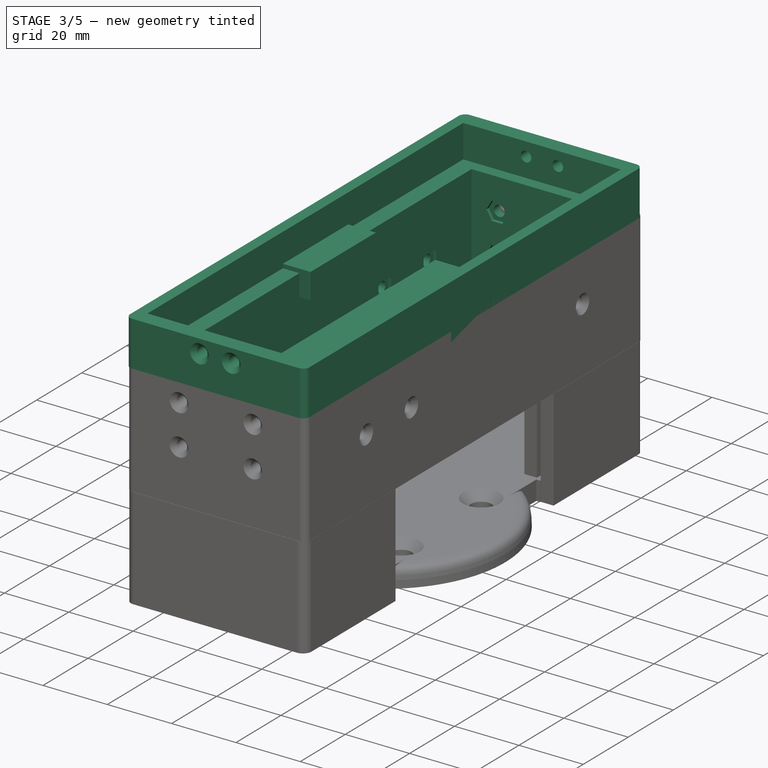
[diagram: stage 3 of 5 — iso view after this stage's code; geometry added in this stage tinted green]
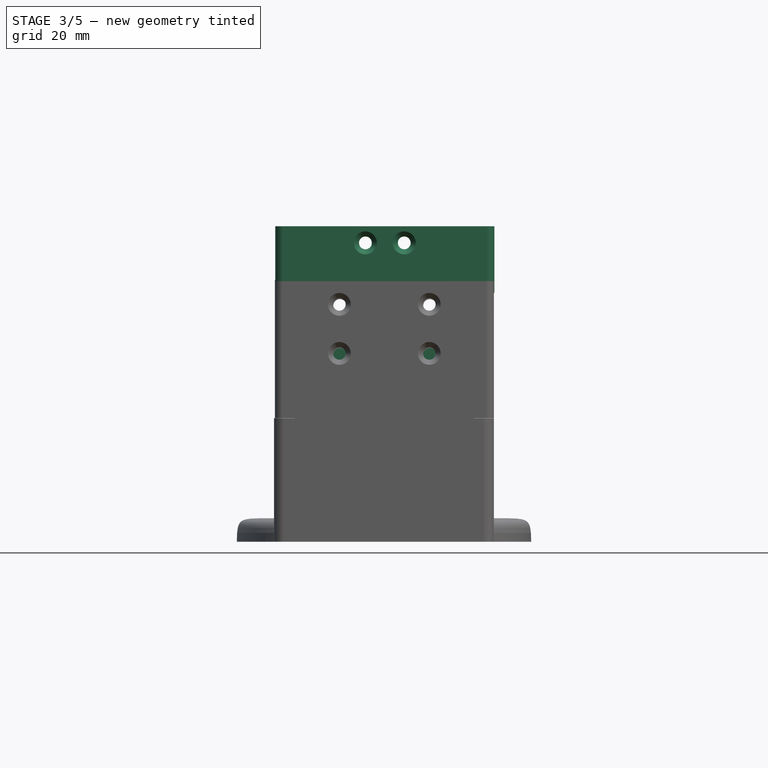
[diagram: stage 3 of 5 — front view after this stage's code; geometry added in this stage tinted green]
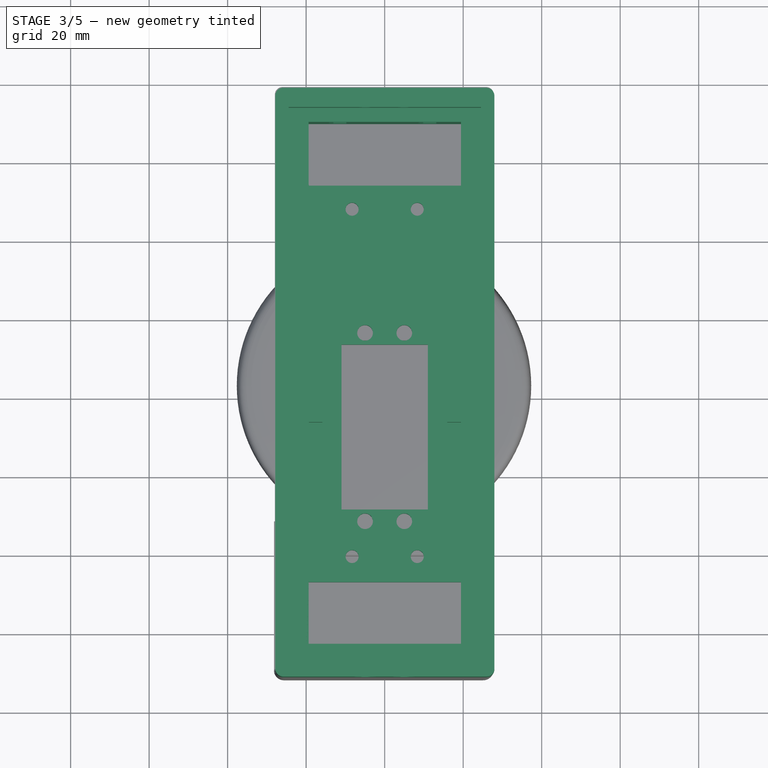
[diagram: stage 3 of 5 — top view after this stage's code; geometry added in this stage tinted green]
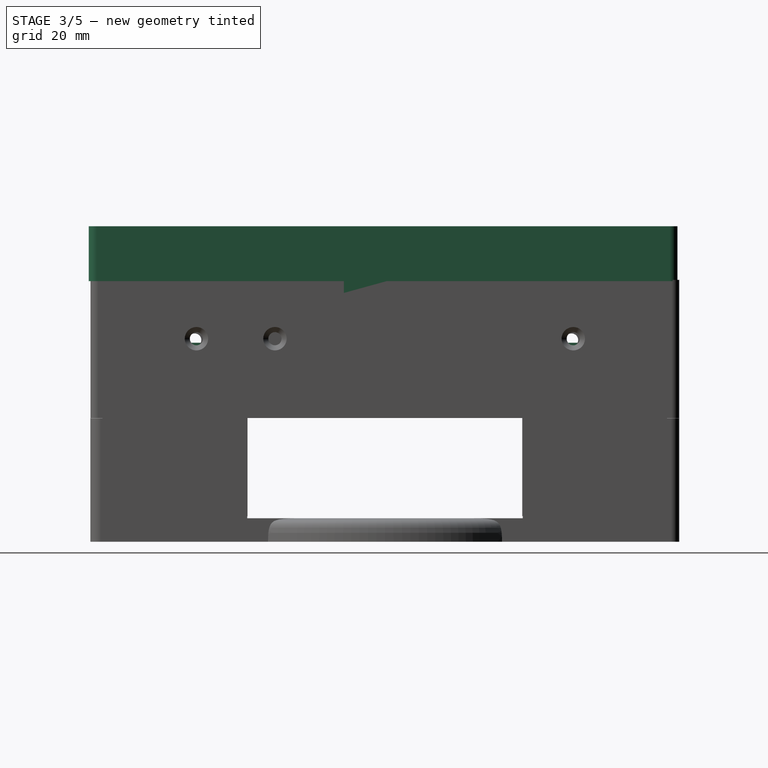
[diagram: stage 3 of 5 — right view after this stage's code; geometry added in this stage tinted green]
FEATURE [Part::Feature] Part__Feature003  label="Arm"
  Placement = pos=(2e-15,2,20) rot=(0.57735,0.57735,0.57735;2.0944rad)
  shape: bbox 35.53 x 14.89 x 6.001 mm, 629 faces (baked)
FEATURE [Part::Feature] Part__Feature002  label="Digital Servo 270"
  Placement = pos=(0,2,1e-15) rot=(1,0,0;1.5708rad)
  shape: bbox 20.27 x 55.85 x 45.94 mm, 1871 faces, 11 solids (baked)
FEATURE [Part::Feature] Part__Feature004  label="默认"
  shape: bbox 150 x 44 x 55.8 mm, 195 faces (baked)
FEATURE [App::Part] _86643ff10cbb2ffb86e52acc1f8189920230129_1_1tlnvif  label="servo_top_cover"
  Group = -> [Part__Feature004]
  Origin = -> Origin022
  Placement = pos=(0.04,2.92,15.7) rot=(0.57735,-0.57735,-0.57735;2.0944rad)
FEATURE [Part::Feature] Part__Feature005  label="默认001"
  shape: bbox 150 x 60.2 x 55.8 mm, 253 faces (baked)
FEATURE [App::Part] _a646f5a092c4f7b2ff40f60c0eee81720230129_1_buqnvq  label="servo_bottom_cover_0"
  Group = -> [Part__Feature005]
  Origin = -> Origin023
  Placement = pos=(-0.08,3.36,-19.16) rot=(-0.57735,0.57735,0.57735;4.18879rad)
FEATURE [Part::Feature] Part__Feature007  label="默认003"
  shape: bbox 102 x 25.85 x 10.4 mm, 51 faces (baked)
FEATURE [App::Part] _9dcb4f0f04c1159ae32c3b91fff780c20230129_1_z3p38f  label="slider_up"
  Group = -> [Part__Feature007]
  Origin = -> Origin025
  Placement = pos=(-14.75,-27.9,39.35) rot=(0.57735,0.57735,-0.57735;4.18879rad)
FEATURE [Part::Feature] Part__Feature008  label="默认004"
  shape: bbox 150 x 18.3 x 55.8 mm, 114 faces (baked)
FEATURE [App::Part] c6f6af2ac2d678655e6694fccf83f75c20230129_1_16mjkgv  label="slidet_pathing_way"
  Group = -> [Part__Feature008]
  Origin = -> Origin026
  Placement = pos=(1.1e-15,2.5,29.5) rot=(-0.57735,0.57735,0.57735;4.18879rad)
FEATURE [Part::Feature] Part__Feature009  label="GB - Rack-spur - rectangular 1.5M 20PA 6.5FW 4.5PH 56.5L---SAll"
  shape: bbox 102 x 5.9 x 6.5 mm, 94 faces (baked)
FEATURE [App::Part] _e51114460145520dc4032a1bbcb96c420230129_1_2bg1k7  label="rack_up"
  Group = -> [Part__Feature009]
  Origin = -> Origin027
  Placement = pos=(-18.75,51.6922,29.0027) rot=(0,0,-1;1.5708rad)
FEATURE [Sketcher::SketchObject] Sketch014
  FullyConstrained = false
  MapMode = 5
  Support = -> [XY_Plane029]
  sketch-geometry (16):
    g0: LineSegment StartX=-19.5 StartY=-47.5 StartZ=0 EndX=19.5 EndY=-47.5 EndZ=0
    g1: LineSegment StartX=19.5 StartY=-47.5 StartZ=0 EndX=19.5 EndY=53.5 EndZ=0
    g2: LineSegment StartX=19.5 StartY=53.5 StartZ=0 EndX=-19.5 EndY=53.5 EndZ=0
    g3: LineSegment StartX=-19.5 StartY=53.5 StartZ=0 EndX=-19.5 EndY=-47.5 EndZ=0
    g4: Circle CenterX=-5 CenterY=-32 CenterZ=0 NormalX=0 NormalY=0 NormalZ=1 AngleXU=0 Radius=2
    g5: Circle CenterX=5 CenterY=-32 CenterZ=0 NormalX=0 NormalY=0 NormalZ=1 AngleXU=0 Radius=2
    g6: Circle CenterX=5 CenterY=16 CenterZ=0 NormalX=0 NormalY=0 NormalZ=1 AngleXU=0 Radius=2
    g7: Circle CenterX=-5 CenterY=16 CenterZ=0 NormalX=0 NormalY=0 NormalZ=1 AngleXU=0 Radius=2
    g8: LineSegment StartX=-10.9946 StartY=13.0217 StartZ=0 EndX=10.992 EndY=13.0217 EndZ=0
    g9: LineSegment StartX=10.992 StartY=13.0217 StartZ=0 EndX=10.992 EndY=-29.019 EndZ=0
    g10: LineSegment StartX=10.992 StartY=-29.019 StartZ=0 EndX=-10.9946 EndY=-29.019 EndZ=0
    g11: LineSegment StartX=-10.9946 StartY=-29.019 StartZ=0 EndX=-10.9946 EndY=13.0217 EndZ=0
    g12: Circle CenterX=-8.3 CenterY=-41 CenterZ=0 NormalX=0 NormalY=0 NormalZ=1 AngleXU=0 Radius=1.65639
    g13: Circle CenterX=8.3 CenterY=-41 CenterZ=0 NormalX=0 NormalY=0 NormalZ=1 AngleXU=0 Radius=1.66102
    g14: Circle CenterX=8.3 CenterY=47.5 CenterZ=0 NormalX=0 NormalY=0 NormalZ=1 AngleXU=0 Radius=1.66226
    g15: Circle CenterX=-8.3 CenterY=47.5 CenterZ=0 NormalX=0 NormalY=0 NormalZ=1 AngleXU=0 Radius=1.6638
  constraints (16):
    c: Coincident(g0,g1)
    c: Coincident(g1,g2)
    c: Coincident(g2,g3)
    c: Coincident(g3,g0)
    c: Horizontal(g0)
    c: Horizontal(g2)
    c: Vertical(g1)
    c: Vertical(g3)
    c: Coincident(g8,g9)
    c: Coincident(g9,g10)
    c: Coincident(g10,g11)
    c: Coincident(g11,g8)
    c: Horizontal(g8)
    c: Horizontal(g10)
    c: Vertical(g9)
    c: Vertical(g11)
FEATURE [PartDesign::Pad] Pad010
  Direction = (1,1,1)
  Length = 5
  Length2 = 100
  Profile = -> Sketch014
  Reversed = true
  Type = 0
FEATURE [PartDesign::Body] Body010
  Group = -> [Sketch014,Pad010]
  Origin = -> Origin029
  Tip = -> Pad010
FEATURE [App::Part] Part010  label="baza_servo"
  Group = -> [Body010]
  Origin = -> Origin028
FEATURE [Part::FeaturePython] Connect  # WARN: FeaturePython — macro-defined, semantics opaque (R4)
  Objects = -> [_86643ff10cbb2ffb86e52acc1f8189920230129_1_1tlnvif,Part010]
  Tolerance = 0
FEATURE [Sketcher::SketchObject] Sketch015
  FullyConstrained = false
  MapMode = 5
  Support = -> [XY_Plane031]
  sketch-geometry (4):
    g0: LineSegment StartX=-19.3012 StartY=53.96 StartZ=0 EndX=19.4314 EndY=53.96 EndZ=0
    g1: LineSegment StartX=19.4314 StartY=53.96 StartZ=0 EndX=19.4314 EndY=-47.978 EndZ=0
    g2: LineSegment StartX=19.4314 StartY=-47.978 StartZ=0 EndX=-19.3012 EndY=-47.978 EndZ=0
    g3: LineSegment StartX=-19.3012 StartY=-47.978 StartZ=0 EndX=-19.3012 EndY=53.96 EndZ=0
  constraints (8):
    c: Coincident(g0,g1)
    c: Coincident(g1,g2)
    c: Coincident(g2,g3)
    c: Coincident(g3,g0)
    c: Horizontal(g0)
    c: Horizontal(g2)
    c: Vertical(g1)
    c: Vertical(g3)
FEATURE [PartDesign::Pad] Pad011
  Direction = (1,1,1)
  Length = 4
  Length2 = 100
  Profile = -> Sketch015
  Type = 0
FEATURE [PartDesign::Body] Body011  label="taie baza veche"
  Group = -> [Sketch015,Pad011]
  Origin = -> Origin031
  Placement = pos=(0,0,-0.25) rot=(0,0,1;0rad)
  Tip = -> Pad011
FEATURE [App::Part] Part011  label="taie_baza_originala"
  Group = -> [Body011]
  Origin = -> Origin030
  Placement = pos=(0,0,15.75) rot=(0,0,1;0rad)
FEATURE [Part::Cut] Cut007
  Base = -> Connect
  Tool = -> Part011
FEATURE [PartDesign::ShapeBinder] CopyCut007
  Placement = pos=(0.04,2.92,15.7) rot=(0.57735,-0.57735,-0.57735;2.0944rad)
  TraceSupport = false
FEATURE [Sketcher::SketchObject] Sketch016
  FullyConstrained = false
  MapMode = 5
  Placement = pos=(-27.86,2.92,15.7) rot=(0.57735,-0.57735,-0.57735;2.0944rad)
  Support = -> [CopyCut007]
  sketch-geometry (4):
    g0: LineSegment StartX=-19 StartY=5 StartZ=0 EndX=10 EndY=5 EndZ=0
    g1: LineSegment StartX=10 StartY=5 StartZ=0 EndX=10 EndY=-3 EndZ=0
    g2: LineSegment StartX=10 StartY=-3 StartZ=0 EndX=-19 EndY=-3 EndZ=0
    g3: LineSegment StartX=-19 StartY=-3 StartZ=0 EndX=-19 EndY=5 EndZ=0
  constraints (8):
    c: Coincident(g0,g1)
    c: Coincident(g1,g2)
    c: Coincident(g2,g3)
    c: Coincident(g3,g0)
    c: Horizontal(g0)
    c: Horizontal(g2)
    c: Vertical(g1)
    c: Vertical(g3)
FEATURE [PartDesign::Pad] Pad012
  Direction = (1,1,1)
  Length = 12
  Length2 = 100
  Placement = pos=(0.04,2.92,15.7) rot=(0.57735,-0.57735,-0.57735;2.0944rad)
  Profile = -> Sketch016
  Reversed = true
  Type = 0
FEATURE [PartDesign::ShapeBinder] CopyCut008
  Placement = pos=(0.04,2.92,15.7) rot=(0.57735,-0.57735,-0.57735;2.0944rad)
  TraceSupport = false
FEATURE [Sketcher::SketchObject] Sketch017
  FullyConstrained = false
  MapMode = 5
  Placement = pos=(27.94,2.92,15.7) rot=(0.57735,-0.57735,0.57735;4.18879rad)
  Support = -> [CopyCut008]
  sketch-geometry (4):
    g0: LineSegment StartX=-19 StartY=3 StartZ=0 EndX=10 EndY=3 EndZ=0
    g1: LineSegment StartX=10 StartY=3 StartZ=0 EndX=10 EndY=-5 EndZ=0
    g2: LineSegment StartX=10 StartY=-5 StartZ=0 EndX=-19 EndY=-5 EndZ=0
    g3: LineSegment StartX=-19 StartY=-5 StartZ=0 EndX=-19 EndY=3 EndZ=0
  constraints (8):
    c: Coincident(g0,g1)
    c: Coincident(g1,g2)
    c: Coincident(g2,g3)
    c: Coincident(g3,g0)
    c: Horizontal(g0)
    c: Horizontal(g2)
    c: Vertical(g1)
    c: Vertical(g3)
FEATURE [PartDesign::Pad] Pad013
  Direction = (1,1,1)
  Length = 12
  Length2 = 100
  Placement = pos=(0.04,2.92,15.7) rot=(0.57735,-0.57735,-0.57735;2.0944rad)
  Profile = -> Sketch017
  Reversed = true
  Type = 0
FEATURE [PartDesign::Body] Body018  label="umple_gol"
  Group = -> [CopyCut010,Sketch023,Pad018]
  Origin = -> Origin047
  Tip = -> Pad018
FEATURE [Part::MultiFuse] Fusion001
  Shapes = -> [Cut010,Body018]
FEATURE [PartDesign::Body] Body019
  Group = -> [CopyFusion001,Sketch024,Pad019]
  Origin = -> Origin049
  Tip = -> Pad019
FEATURE [App::Part] Part018  label="cut_esp32_base"
  Group = -> [Body019]
  Origin = -> Origin048
FEATURE [Part::Cut] Cut011
  Base = -> Fusion001
  Tool = -> Part018
FEATURE [PartDesign::Body] Body020
  Group = -> [CopyCut011,Sketch025,Pad020]
  Origin = -> Origin051
  Tip = -> Pad020
FEATURE [App::Part] Part019  label="cat_fanta_1"
  Group = -> [Body020]
  Origin = -> Origin050
FEATURE [Part::Cut] Cut012
  Base = -> Cut011
  Tool = -> Part019
FEATURE [PartDesign::Body] Body021
  Group = -> [CopyCut012,Sketch026,Pad021]
  Origin = -> Origin053
  Tip = -> Pad021
FEATURE [App::Part] Part020  label="cut_fanta_2"
  Group = -> [Body021]
  Origin = -> Origin052
FEATURE [Part::Cut] Cut013  label="servo_bottom_cover_1"
  Base = -> Cut012
  Tool = -> Part020
FEATURE [PartDesign::ShapeBinder] CopyRobot_connector_v2001_solid
  Placement = pos=(0,0,-18) rot=(0,0,1;0rad)
  TraceSupport = false
FEATURE [Sketcher::SketchObject] Sketch028
  FullyConstrained = false
  MapMode = 5
  Placement = pos=(8.9e-15,-8.9e-15,-62.4) rot=(0,0,1;0rad)
  Support = -> [CopyRobot_connector_v2001_solid]
  sketch-geometry (8):
    g0: LineSegment StartX=-23 StartY=-31.325 StartZ=0 EndX=-23 EndY=-66.2583 EndZ=0
    g1: LineSegment StartX=-23 StartY=-66.2583 StartZ=0 EndX=23 EndY=-66.2583 EndZ=0
    g2: LineSegment StartX=23 StartY=-66.2583 StartZ=0 EndX=23 EndY=-31 EndZ=0
    g3: LineSegment StartX=23 StartY=-31 StartZ=0 EndX=17 EndY=-31 EndZ=0
    g4: LineSegment StartX=17 StartY=-31 StartZ=0 EndX=17 EndY=-61 EndZ=0
    g5: LineSegment StartX=17 StartY=-61 StartZ=0 EndX=-17 EndY=-61 EndZ=0
    g6: LineSegment StartX=-17 StartY=-61 StartZ=0 EndX=-17 EndY=-31 EndZ=0
    g7: LineSegment StartX=-17 StartY=-31 StartZ=0 EndX=-23 EndY=-31 EndZ=0
  constraints (14):
    c: Vertical(g0)
    c: Coincident(g0,g1)
    c: Horizontal(g1)
    c: Coincident(g1,g2)
    c: Vertical(g2)
    c: Coincident(g2,g3)
    c: Horizontal(g3)
    c: Coincident(g3,g4)
    c: Vertical(g4)
    c: Coincident(g4,g5)
    c: Horizontal(g5)
    c: Coincident(g5,g6)
    c: Vertical(g6)
    c: Coincident(g6,g7)
FEATURE [PartDesign::Body] Body022
  Group = -> [CopyCut013,Sketch027,Pad022,CopyRobot_connector_v2001_solid,Sketch028]
  Origin = -> Origin058
  Tip = -> Pad022
FEATURE [App::Part] Part021  label="cut_usb"
  Group = -> [Body022]
  Origin = -> Origin057
FEATURE [Part::Cut] Cut014  label="servo_botom_cover"
  Base = -> Cut013
  Tool = -> Part021
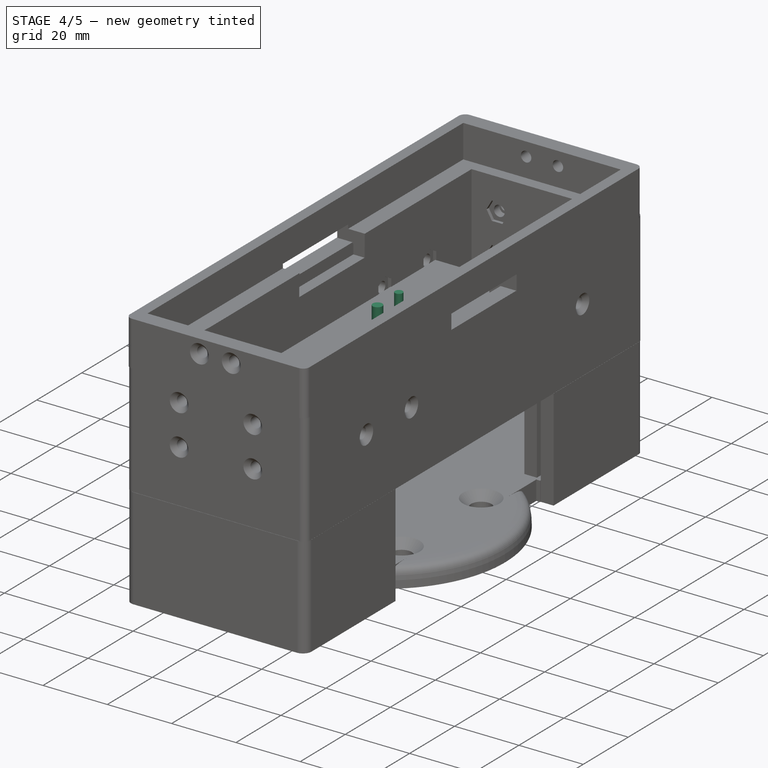
[diagram: stage 4 of 5 — iso view after this stage's code; geometry added in this stage tinted green]
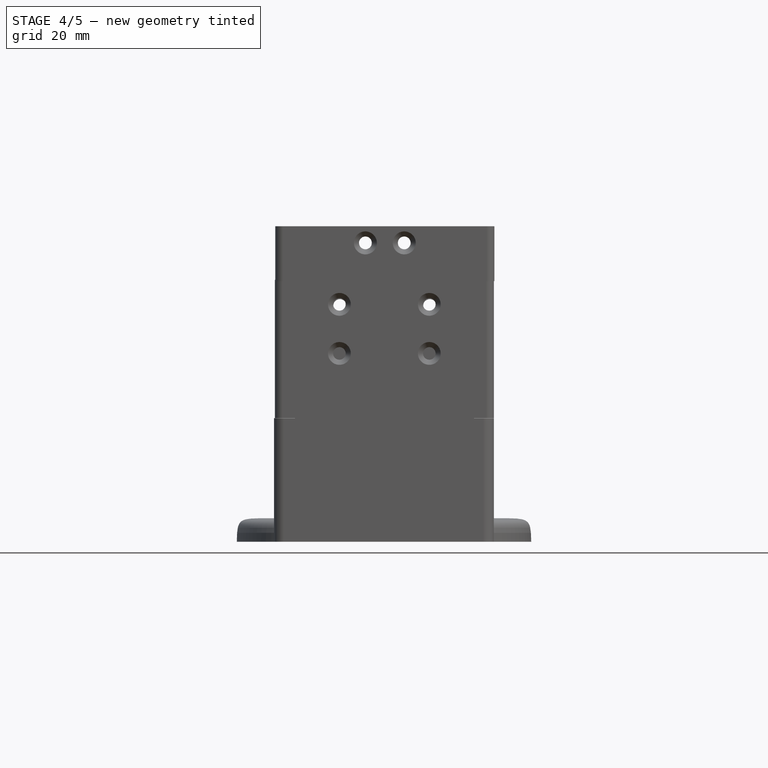
[diagram: stage 4 of 5 — front view after this stage's code; geometry added in this stage tinted green]
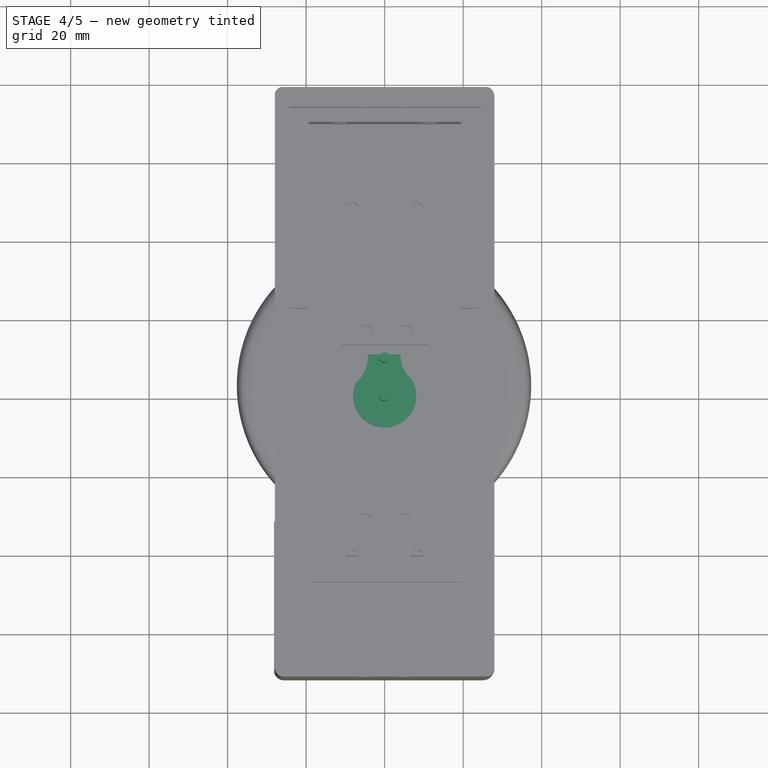
[diagram: stage 4 of 5 — top view after this stage's code; geometry added in this stage tinted green]
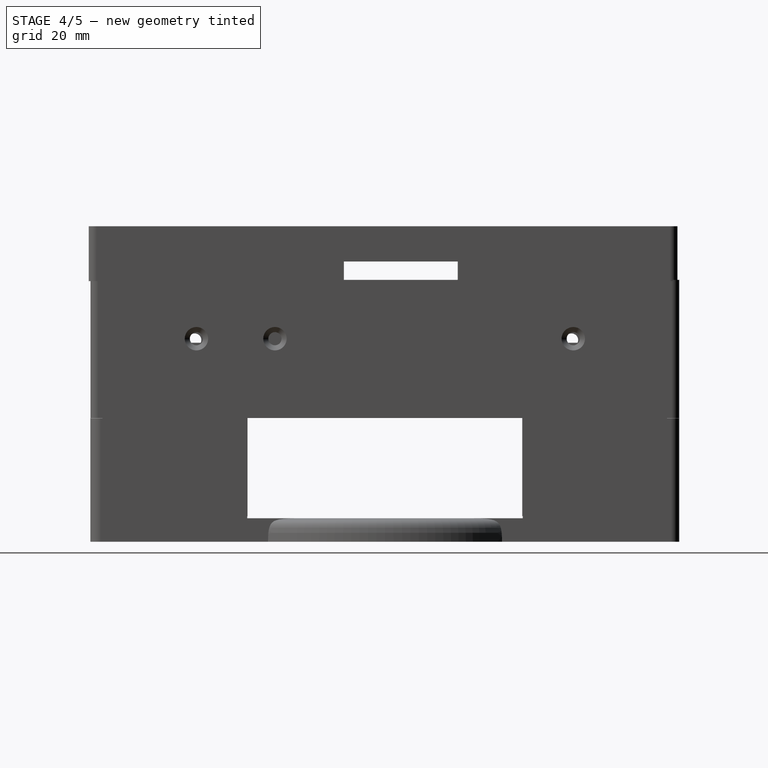
[diagram: stage 4 of 5 — right view after this stage's code; geometry added in this stage tinted green]
FEATURE [Sketcher::SketchObject] Sketch003
  FullyConstrained = true
  MapMode = 5
  Support = -> [XY_Plane008]
FEATURE [Sketcher::SketchObject] Sketch004
  FullyConstrained = true
  MapMode = 5
  Support = -> [XY_Plane008]
FEATURE [Sketcher::SketchObject] Sketch005
  FullyConstrained = false
  MapMode = 5
  Support = -> [XY_Plane008]
  sketch-geometry (1):
    g0: Circle CenterX=0 CenterY=0 CenterZ=0 NormalX=0 NormalY=0 NormalZ=1 AngleXU=0 Radius=5.04279
  constraints (1):
    c: Coincident(g0,g-1)
FEATURE [Sketcher::SketchObject] Sketch006
  FullyConstrained = true
  MapMode = 5
  Support = -> [XY_Plane008]
FEATURE [PartDesign::Body] Body002
  Group = -> [Sketch002,Pad002,Sketch003,Sketch004,Sketch005,Sketch006]
  Origin = -> Origin008
  Placement = pos=(0,0,10) rot=(0,0,1;0rad)
  Tip = -> Pad002
FEATURE [Sketcher::SketchObject] Sketch007
  FullyConstrained = false
  MapMode = 5
  Support = -> [XY_Plane009]
  sketch-geometry (4):
    g0: LineSegment StartX=-2.73742 StartY=4 StartZ=0 EndX=4 EndY=4 EndZ=0
    g1: LineSegment StartX=4 StartY=4 StartZ=0 EndX=4 EndY=6 EndZ=0
    g2: LineSegment StartX=4 StartY=6 StartZ=0 EndX=-2.73742 EndY=6 EndZ=0
    g3: LineSegment StartX=-2.73742 StartY=6 StartZ=0 EndX=-2.73742 EndY=4 EndZ=0
  constraints (8):
    c: Coincident(g0,g1)
    c: Coincident(g1,g2)
    c: Coincident(g2,g3)
    c: Coincident(g3,g0)
    c: Horizontal(g0)
    c: Horizontal(g2)
    c: Vertical(g1)
    c: Vertical(g3)
FEATURE [PartDesign::Pad] Pad003
  Direction = (1,1,1)
  Length = 1.5
  Length2 = 100
  Profile = -> Sketch007
  Reversed = true
  Type = 0
FEATURE [PartDesign::Body] Body003
  Group = -> [Sketch007,Pad003]
  Origin = -> Origin009
  Placement = pos=(0,0,13) rot=(0,0,1;0rad)
  Tip = -> Pad003
FEATURE [Sketcher::SketchObject] Sketch008
  FullyConstrained = false
  MapMode = 5
  Support = -> [XY_Plane011]
  sketch-geometry (4):
    g0: LineSegment StartX=-4 StartY=-6 StartZ=0 EndX=2.7559 EndY=-6 EndZ=0
    g1: LineSegment StartX=2.7559 StartY=-6 StartZ=0 EndX=2.7559 EndY=-4 EndZ=0
    g2: LineSegment StartX=2.7559 StartY=-4 StartZ=0 EndX=-4 EndY=-4 EndZ=0
    g3: LineSegment StartX=-4 StartY=-4 StartZ=0 EndX=-4 EndY=-6 EndZ=0
  constraints (8):
    c: Coincident(g0,g1)
    c: Coincident(g1,g2)
    c: Coincident(g2,g3)
    c: Coincident(g3,g0)
    c: Horizontal(g0)
    c: Horizontal(g2)
    c: Vertical(g1)
    c: Vertical(g3)
FEATURE [PartDesign::Pad] Pad004
  Direction = (1,1,1)
  Length = 1.5
  Length2 = 100
  Profile = -> Sketch008
  Reversed = true
  Type = 0
FEATURE [Sketcher::SketchObject] Sketch001
  FullyConstrained = false
  MapMode = 5
  Support = -> [XY_Plane006]
  sketch-geometry (1):
    g0: Circle CenterX=0 CenterY=9.48518 CenterZ=0 NormalX=0 NormalY=0 NormalZ=1 AngleXU=0 Radius=1.20083
  constraints (1):
    c: PointOnObject(g0,g-2)
FEATURE [PartDesign::Pad] Pad001
  Direction = (1,1,1)
  Length = 13
  Length2 = 100
  Profile = -> Sketch001
  Type = 0
FEATURE [Sketcher::SketchObject] Sketch009
  FullyConstrained = false
  MapMode = 5
  Support = -> [XY_Plane014]
  sketch-geometry (4):
    g0: LineSegment StartX=4.58873 StartY=6.3703 StartZ=0 EndX=6 EndY=4 EndZ=0
    g1: LineSegment StartX=6 StartY=4 StartZ=0 EndX=4 EndY=4 EndZ=0
    g2: LineSegment StartX=4 StartY=4 StartZ=0 EndX=4 EndY=6 EndZ=0
    g3: LineSegment StartX=4 StartY=6 StartZ=0 EndX=4.58873 EndY=6.3703 EndZ=0
  constraints (6):
    c: Coincident(g0,g1)
    c: Horizontal(g1)
    c: Coincident(g1,g2)
    c: Vertical(g2)
    c: Coincident(g2,g3)
    c: Coincident(g3,g0)
FEATURE [PartDesign::Pad] Pad005
  Direction = (1,1,1)
  Length = 1.5
  Length2 = 100
  Profile = -> Sketch009
  Reversed = true
  Type = 0
FEATURE [PartDesign::Body] Body005
  Group = -> [Sketch009,Pad005]
  Origin = -> Origin014
  Tip = -> Pad005
FEATURE [Sketcher::SketchObject] Sketch010
  FullyConstrained = false
  MapMode = 5
  Support = -> [XY_Plane015]
  sketch-geometry (3):
    g0: LineSegment StartX=-4 StartY=-6 StartZ=0 EndX=-4 EndY=-4 EndZ=0
    g1: LineSegment StartX=-4 StartY=-4 StartZ=0 EndX=-6 EndY=-4 EndZ=0
    g2: LineSegment StartX=-6 StartY=-4 StartZ=0 EndX=-4 EndY=-6 EndZ=0
  constraints (5):
    c: Vertical(g0)
    c: Coincident(g0,g1)
    c: Horizontal(g1)
    c: Coincident(g1,g2)
    c: Coincident(g2,g0)
FEATURE [PartDesign::Pad] Pad006
  Direction = (1,1,1)
  Length = 1.5
  Length2 = 100
  Profile = -> Sketch010
  Reversed = true
  Type = 0
FEATURE [Sketcher::SketchObject] Sketch011
  FullyConstrained = false
  MapMode = 5
  Support = -> [XY_Plane017]
  sketch-geometry (1):
    g0: Circle CenterX=0 CenterY=0 CenterZ=0 NormalX=0 NormalY=0 NormalZ=1 AngleXU=0 Radius=1.5
  constraints (1):
    c: PointOnObject(g0,g-2)
FEATURE [PartDesign::Pad] Pad007
  Direction = (1,1,1)
  Length = 13
  Length2 = 100
  Profile = -> Sketch011
  Type = 0
FEATURE [Sketcher::SketchObject] Sketch012
  FullyConstrained = false
  MapMode = 5
  Support = -> [XY_Plane019]
  sketch-geometry (4):
    g0: ArcOfCircle CenterX=0 CenterY=0 CenterZ=0 NormalX=0 NormalY=0 NormalZ=1 AngleXU=0 Radius=8.03613 StartAngle=2.75002 EndAngle=6.81722
    g1: ArcOfCircle CenterX=-14.051 CenterY=10.256 CenterZ=0 NormalX=0 NormalY=0 NormalZ=1 AngleXU=0 Radius=9.77492 StartAngle=5.45683 EndAngle=6.30815
    g2: ArcOfCircle CenterX=12.5 CenterY=10.5 CenterZ=0 NormalX=0 NormalY=0 NormalZ=1 AngleXU=0 Radius=8.5 StartAngle=3.14159 EndAngle=3.99582
    g3: LineSegment StartX=-4.27913 StartY=10.5 StartZ=0 EndX=4 EndY=10.5 EndZ=0
  constraints (6):
    c: Coincident(g0,g-1)
    c: Coincident(g1,g0)
    c: Coincident(g2,g0)
    c: Coincident(g3,g1)
    c: Coincident(g3,g2)
    c: Horizontal(g3)
FEATURE [PartDesign::Pad] Pad008
  Direction = (1,1,1)
  Length = 3.7
  Length2 = 100
  Profile = -> Sketch012
  Reversed = true
  Type = 0
FEATURE [Sketcher::SketchObject] Sketch013
  FullyConstrained = false
  MapMode = 5
  Support = -> [XY_Plane021]
  sketch-geometry (1):
    g0: Circle CenterX=0 CenterY=9.5 CenterZ=0 NormalX=0 NormalY=0 NormalZ=1 AngleXU=0 Radius=1.5
  constraints (1):
    c: PointOnObject(g0,g-2)
FEATURE [PartDesign::Pad] Pad009
  Direction = (1,1,1)
  Length = 13
  Length2 = 100
  Profile = -> Sketch013
  Reversed = true
  Type = 0
FEATURE [PartDesign::Body] Body012
  Group = -> [CopyCut007,Sketch016,Pad012]
  Origin = -> Origin033
  Tip = -> Pad012
FEATURE [App::Part] Part012  label="fanta arm sus"
  Group = -> [Body012]
  Origin = -> Origin032
FEATURE [Part::Cut] Cut008
  Base = -> Cut007
  Tool = -> Part012
FEATURE [PartDesign::Body] Body013
  Group = -> [CopyCut008,Sketch017,Pad013]
  Origin = -> Origin035
  Tip = -> Pad013
FEATURE [App::Part] Part013  label="fanta arm jos"
  Group = -> [Body013]
  Origin = -> Origin034
FEATURE [Part::Cut] Cut009  label="servo_front_cover"
  Base = -> Cut008
  Tool = -> Part013
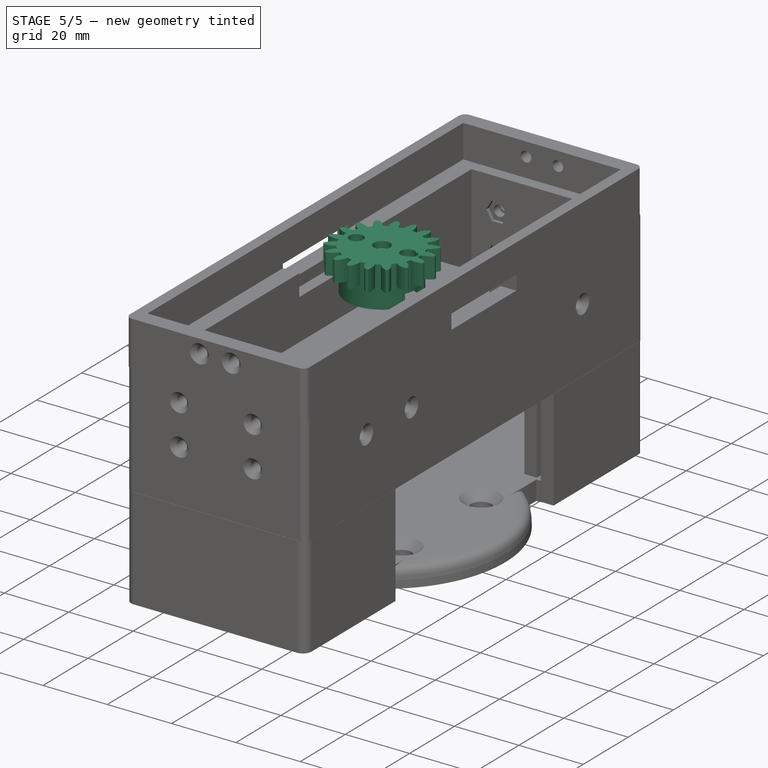
[diagram: stage 5 of 5 — iso view after this stage's code; geometry added in this stage tinted green]
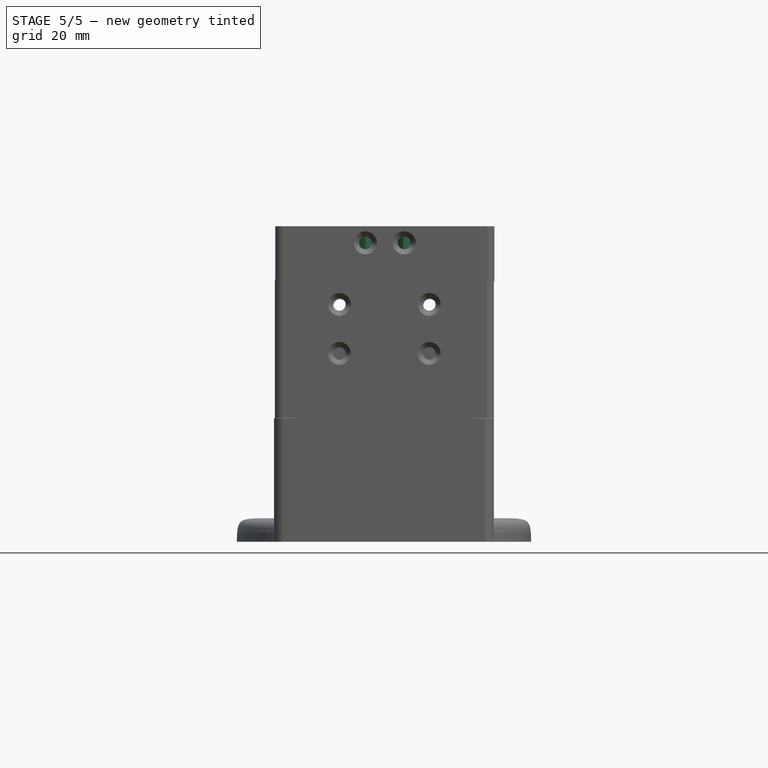
[diagram: stage 5 of 5 — front view after this stage's code; geometry added in this stage tinted green]
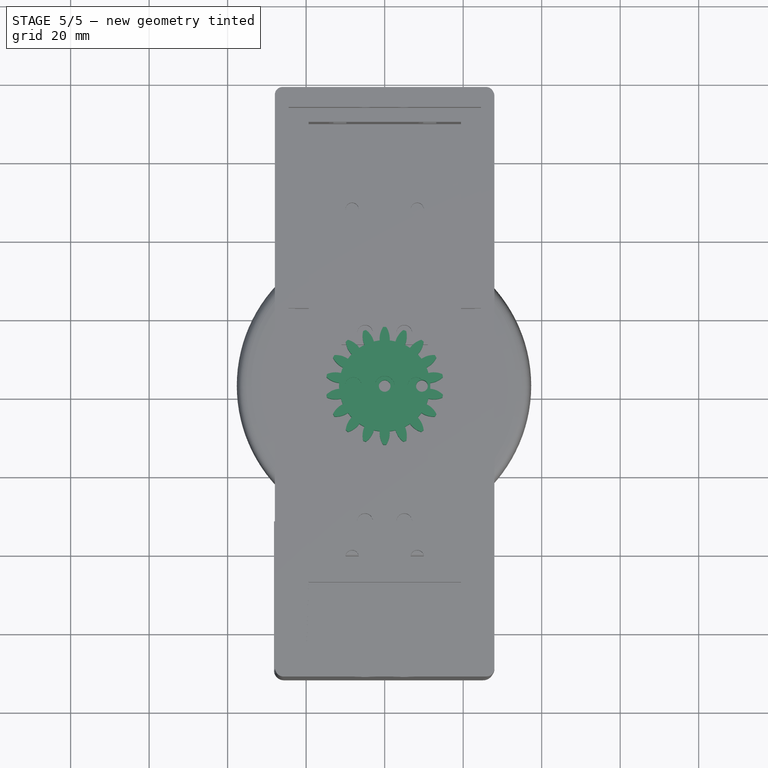
[diagram: stage 5 of 5 — top view after this stage's code; geometry added in this stage tinted green]
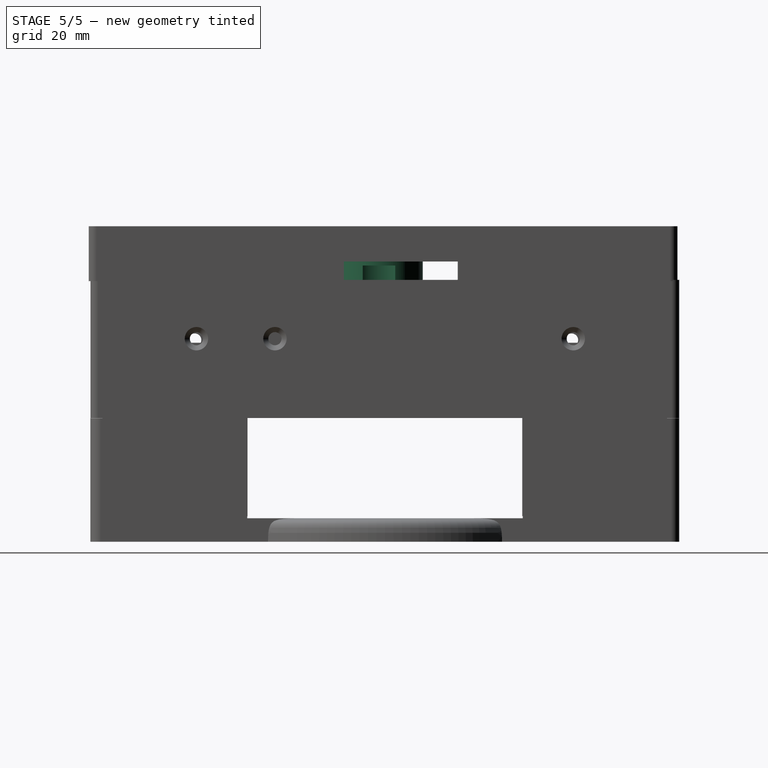
[diagram: stage 5 of 5 — right view after this stage's code; geometry added in this stage tinted green]
FEATURE [Part::Feature] Part__Feature  label="GB - Spur gear 1.5M 18T 20PA 6.5FW ---S18A75H50L0.8N"
  shape: bbox 6.5 x 29.67 x 30 mm, 90 faces (baked)
FEATURE [App::Part] c073172c7411e071254b69af1d061e8520230128_1_anairh  label="c073172c7411e071254b69af1d061e8520230128-1-anairh"
  Group = -> [Part__Feature]
  Origin = -> Origin
  Placement = pos=(0,0,0) rot=(0,-1,0;1.5708rad)
FEATURE [App::Part] Part  label="gear"
  Group = -> [c073172c7411e071254b69af1d061e8520230128_1_anairh]
  Origin = -> Origin001
FEATURE [Sketcher::SketchObject] Sketch
  FullyConstrained = false
  MapMode = 5
  Support = -> [XY_Plane003]
  sketch-geometry (1):
    g0: Circle CenterX=0 CenterY=0 CenterZ=0 NormalX=0 NormalY=0 NormalZ=1 AngleXU=0 Radius=11.0204
  constraints (1):
    c: Coincident(g0,g-1)
FEATURE [PartDesign::Pad] Pad
  Direction = (1,1,1)
  Length = 11
  Length2 = 100
  Profile = -> Sketch
  Type = 0
FEATURE [PartDesign::Body] Body
  Group = -> [Sketch,Pad]
  Origin = -> Origin003
  Placement = pos=(0,0,1) rot=(0,0,1;0rad)
  Tip = -> Pad
FEATURE [App::Part] Part001
  Group = -> [Body]
  Origin = -> Origin002
  Placement = pos=(0,0,1) rot=(0,0,1;0rad)
FEATURE [Part::Feature] Part__Feature001  label="STEP214 Servo Arm for DS3218MG"
  Placement = pos=(0,2e-15,9) rot=(-1,0,0;1.5708rad)
  shape: bbox 14.89 x 35.53 x 6.001 mm, 629 faces (baked)
FEATURE [App::Part] Part002
  Group = -> [Part__Feature001]
  Origin = -> Origin004
  Placement = pos=(0,0,0.3) rot=(0,0,1;0rad)
FEATURE [App::Part] Part003
  Group = -> [Part,Part001,Part002]
  Origin = -> Origin005
FEATURE [Sketcher::SketchObject] Sketch002
  FullyConstrained = false
  MapMode = 5
  Support = -> [XY_Plane008]
  sketch-geometry (1):
    g0: Circle CenterX=0 CenterY=0 CenterZ=0 NormalX=0 NormalY=0 NormalZ=1 AngleXU=0 Radius=2.58759
  constraints (1):
    c: Coincident(g0,g-1)
FEATURE [PartDesign::Pad] Pad002
  Direction = (1,1,1)
  Length = 10
  Length2 = 100
  Profile = -> Sketch002
  Type = 0
FEATURE [PartDesign::Body] Body004
  Group = -> [Sketch008,Pad004]
  Origin = -> Origin011
  Placement = pos=(0,0,13) rot=(0,0,1;0rad)
  Tip = -> Pad004
FEATURE [Part::Cut] Cut
  Base = -> Part001
  Tool = -> Part002
FEATURE [PartDesign::Body] Body001
  Group = -> [Sketch001,Pad001]
  Origin = -> Origin006
  Tip = -> Pad001
FEATURE [App::Part] Part004
  Group = -> [Body002,Body001]
  Origin = -> Origin007
FEATURE [Part::Cut] Cut001
  Base = -> Cut
  Tool = -> Part004
FEATURE [App::Part] Part005
  Group = -> [Body003,Body004]
  Origin = -> Origin012
FEATURE [Part::Cut] Cut002
  Base = -> Cut001
  Tool = -> Part005
FEATURE [PartDesign::Body] Body006
  Group = -> [Sketch010,Pad006]
  Origin = -> Origin015
  Tip = -> Pad006
FEATURE [App::Part] Part006
  Group = -> [Body005,Body006]
  Origin = -> Origin013
  Placement = pos=(0,0,13) rot=(0,0,1;0rad)
FEATURE [Part::Cut] Cut003
  Base = -> Cut002
  Tool = -> Part006
FEATURE [PartDesign::Body] Body007
  Group = -> [Sketch011,Pad007]
  Origin = -> Origin017
  Tip = -> Pad007
FEATURE [App::Part] Part007
  Group = -> [Body007]
  Origin = -> Origin016
FEATURE [Part::Cut] Cut004
  Base = -> Cut003
  Tool = -> Part007
FEATURE [Part::MultiFuse] Fusion
  Shapes = -> [Part003,Cut004]
FEATURE [PartDesign::Body] Body008
  Group = -> [Sketch012,Pad008]
  Origin = -> Origin019
  Tip = -> Pad008
FEATURE [App::Part] Part008
  Group = -> [Body008]
  Origin = -> Origin018
  Placement = pos=(0,0,13) rot=(0,0,1;0rad)
FEATURE [Part::Cut] Cut005
  Base = -> Fusion
  Tool = -> Part008
FEATURE [PartDesign::Body] Body009
  Group = -> [Sketch013,Pad009]
  Origin = -> Origin021
  Tip = -> Pad009
FEATURE [App::Part] Part009
  Group = -> [Body009]
  Origin = -> Origin020
  Placement = pos=(0,0,13) rot=(0,0,1;0rad)
FEATURE [Part::Cut] Cut006  label="gear001"
  Base = -> Cut005
  Placement = pos=(0,2,29) rot=(0.707107,0.707107,0;3.14159rad)
  Tool = -> Part009
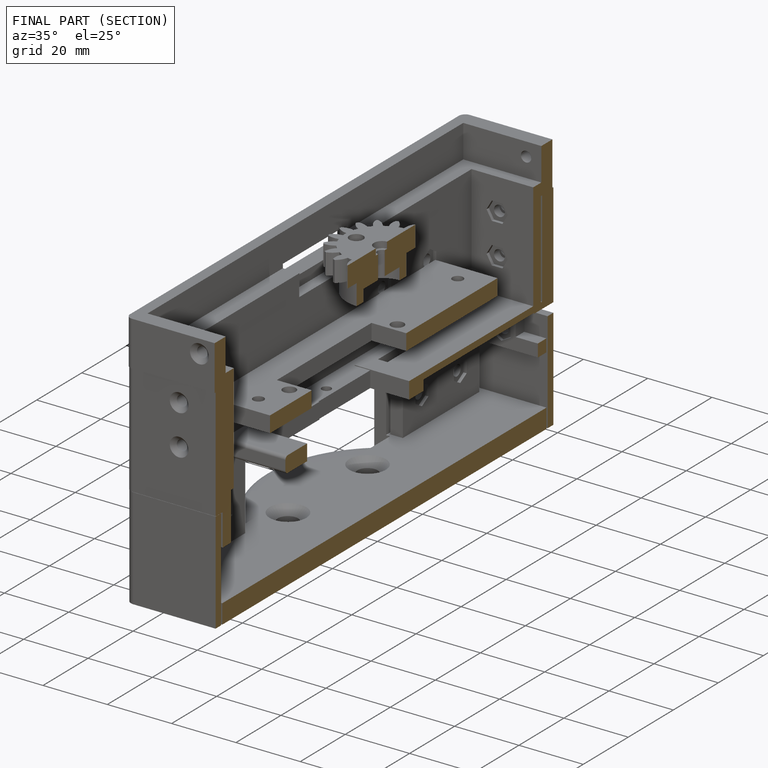
[diagram: finished part — half-section view (interior)]
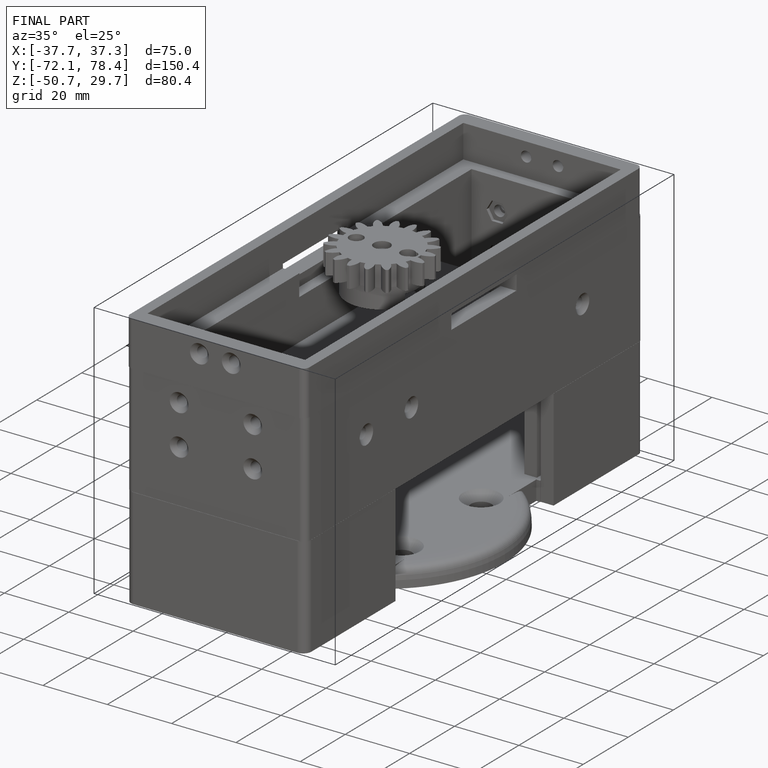
[diagram: finished part — iso view with bounding-box wireframe]
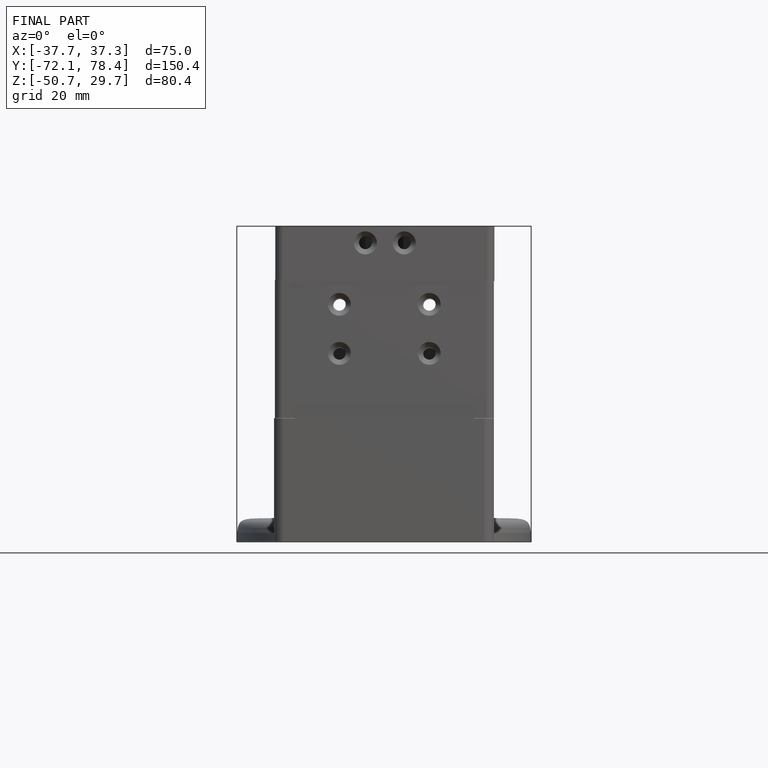
[diagram: finished part — front view with bounding-box wireframe]
